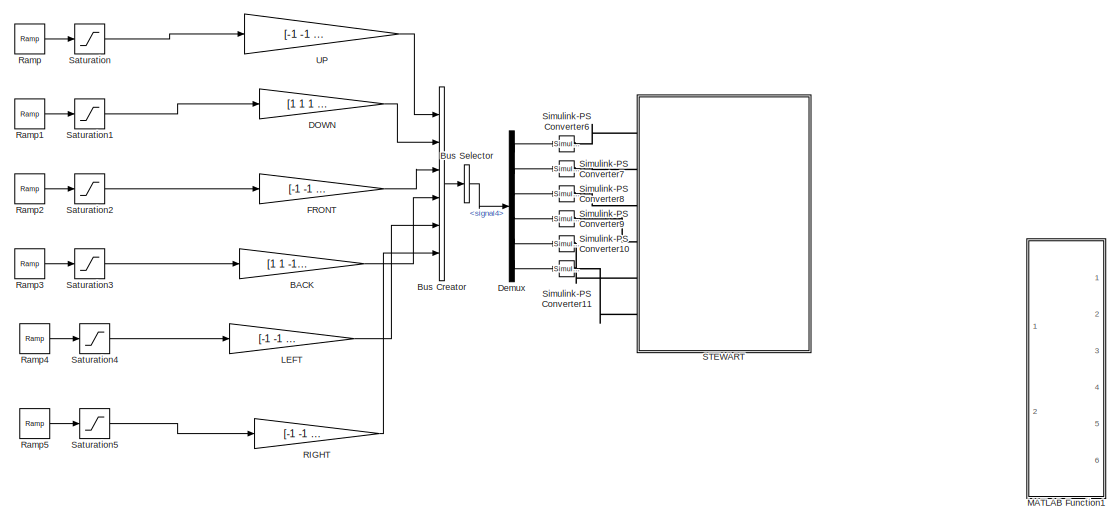
[diagram: root canvas - part 1/2, full width, top band]
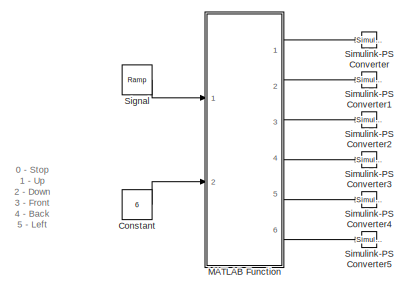
[diagram: root canvas - part 2/2, bottom left region]
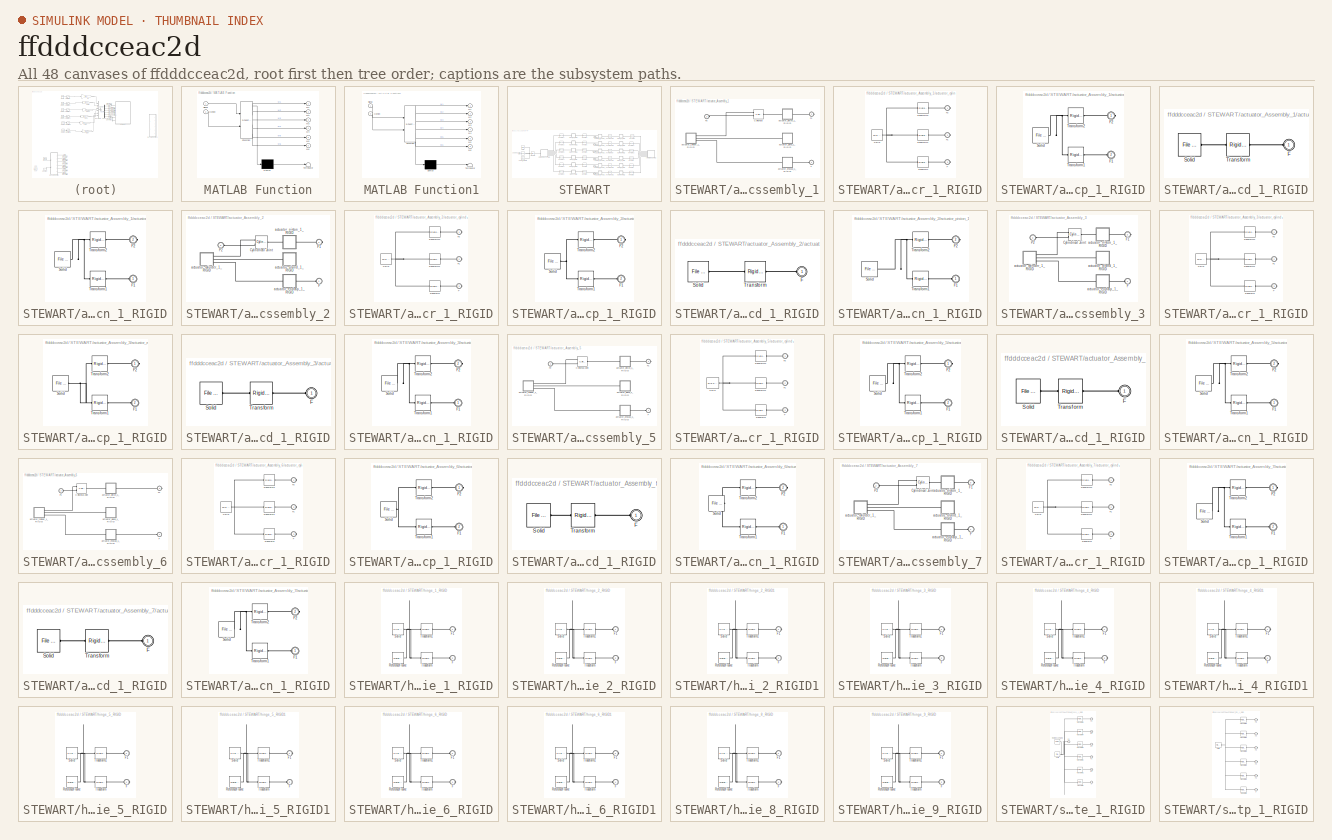
[diagram: thumbnail index - all 48 canvases of the model, root first then tree order]
MODEL slx_ffdddcceac2d
KIND model
CONFIG AbsTol = auto
CONFIG EnableMultiTasking = off
CONFIG FixedStep = auto
CONFIG MaxStep = auto
CONFIG MinStep = auto
CONFIG RelTol = 1e-3
CONFIG SampleTimeConstraint = Unconstrained
CONFIG Solver = VariableStepAuto
CONFIG SolverName = VariableStepAuto
CONFIG StartTime = 0.0
CONFIG StopTime = 10.0
WORKSPACE source: external: MATLAB File  (data not in archive)
BLOCK [Gain] BACK
  Gain = [1 1 -1 -1 -1 -1]
BLOCK [BusCreator] Bus Creator
  DisplayOption = bar
  InheritFromInputs = on
  Inputs = 6
  Ports = [6, 1]
BLOCK [BusSelector] Bus Selector
  OutputSignals = signal4
  Ports = [1, 1]
BLOCK [Constant] Constant
  Commented = on
  OutMax = 6
  OutMin = 0
  Value = 6
BLOCK [Gain] DOWN
  Gain = [1 1 1 1 1 1]
BLOCK [Demux] Demux
  Outputs = 6
  Ports = [1, 6]
BLOCK [Gain] FRONT
  Gain = [-1 -1 -1 1 -1 1]
BLOCK [Gain] LEFT
  Gain = [-1 -1 -1 -1 1 1]
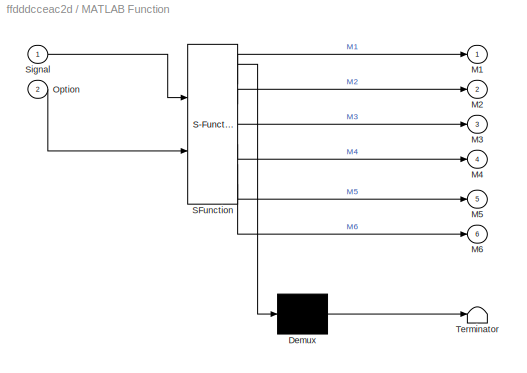
BLOCK [SubSystem] MATLAB Function
  Commented = on
  ErrorFcn = Stateflow.Translate.translate
  PermitHierarchicalResolution = ExplicitOnly
  Ports = [2, 6]
  RequestExecContextInheritance = off
  SFBlockType = MATLAB Function
  TreatAsAtomicUnit = on
BLOCK [Demux] MATLAB Function/ Demux 
  Outputs = 1
  Ports = [1, 1]
BLOCK [S-Function] MATLAB Function/ SFunction 
  EnableBusSupport = on
  FunctionName = sf_sfun
  PortCounts = [2 7]
  Ports = [2, 7]
  SFcnIsStateOwnerBlock = off
  SFunctionDeploymentMode = off
  Tag = Stateflow S-Function 2
BLOCK [Terminator] MATLAB Function/ Terminator 
BLOCK [Outport] MATLAB Function/M1
BLOCK [Outport] MATLAB Function/M2
  Port = 2
BLOCK [Outport] MATLAB Function/M3
  Port = 3
BLOCK [Outport] MATLAB Function/M4
  Port = 4
BLOCK [Outport] MATLAB Function/M5
  Port = 5
BLOCK [Outport] MATLAB Function/M6
  Port = 6
BLOCK [Inport] MATLAB Function/Option
  Port = 2
BLOCK [Inport] MATLAB Function/Signal
BLOCK [SubSystem] MATLAB Function1
  ErrorFcn = Stateflow.Translate.translate
  PermitHierarchicalResolution = ExplicitOnly
  Ports = [2, 6]
  RequestExecContextInheritance = off
  SFBlockType = MATLAB Function
  TreatAsAtomicUnit = on
BLOCK [Demux] MATLAB Function1/ Demux 
  Outputs = 1
  Ports = [1, 1]
BLOCK [S-Function] MATLAB Function1/ SFunction 
  EnableBusSupport = on
  FunctionName = sf_sfun
  PortCounts = [2 7]
  Ports = [2, 7]
  SFcnIsStateOwnerBlock = off
  SFunctionDeploymentMode = off
  Tag = Stateflow S-Function 1
BLOCK [Terminator] MATLAB Function1/ Terminator 
BLOCK [Outport] MATLAB Function1/M1
BLOCK [Outport] MATLAB Function1/M2
  Port = 2
BLOCK [Outport] MATLAB Function1/M3
  Port = 3
BLOCK [Outport] MATLAB Function1/M4
  Port = 4
BLOCK [Outport] MATLAB Function1/M5
  Port = 5
BLOCK [Outport] MATLAB Function1/M6
  Port = 6
BLOCK [Inport] MATLAB Function1/Option
  Port = 2
BLOCK [Inport] MATLAB Function1/Signal
BLOCK [Gain] RIGHT
  Gain = [-1 -1 1 1 -1 -1]
BLOCK [Reference] Ramp  REF=simulink/Sources/Ramp
  Ports = [0, 1]
  SourceBlock = simulink/Sources/Ramp
  SourceProductBaseCode = SL
  SourceType = Ramp
BLOCK [Reference] Ramp1  REF=simulink/Sources/Ramp
  Ports = [0, 1]
  SourceBlock = simulink/Sources/Ramp
  SourceProductBaseCode = SL
  SourceType = Ramp
BLOCK [Reference] Ramp2  REF=simulink/Sources/Ramp
  Ports = [0, 1]
  SourceBlock = simulink/Sources/Ramp
  SourceProductBaseCode = SL
  SourceType = Ramp
BLOCK [Reference] Ramp3  REF=simulink/Sources/Ramp
  Ports = [0, 1]
  SourceBlock = simulink/Sources/Ramp
  SourceProductBaseCode = SL
  SourceType = Ramp
BLOCK [Reference] Ramp4  REF=simulink/Sources/Ramp
  Ports = [0, 1]
  SourceBlock = simulink/Sources/Ramp
  SourceProductBaseCode = SL
  SourceType = Ramp
BLOCK [Reference] Ramp5  REF=simulink/Sources/Ramp
  Ports = [0, 1]
  SourceBlock = simulink/Sources/Ramp
  SourceProductBaseCode = SL
  SourceType = Ramp
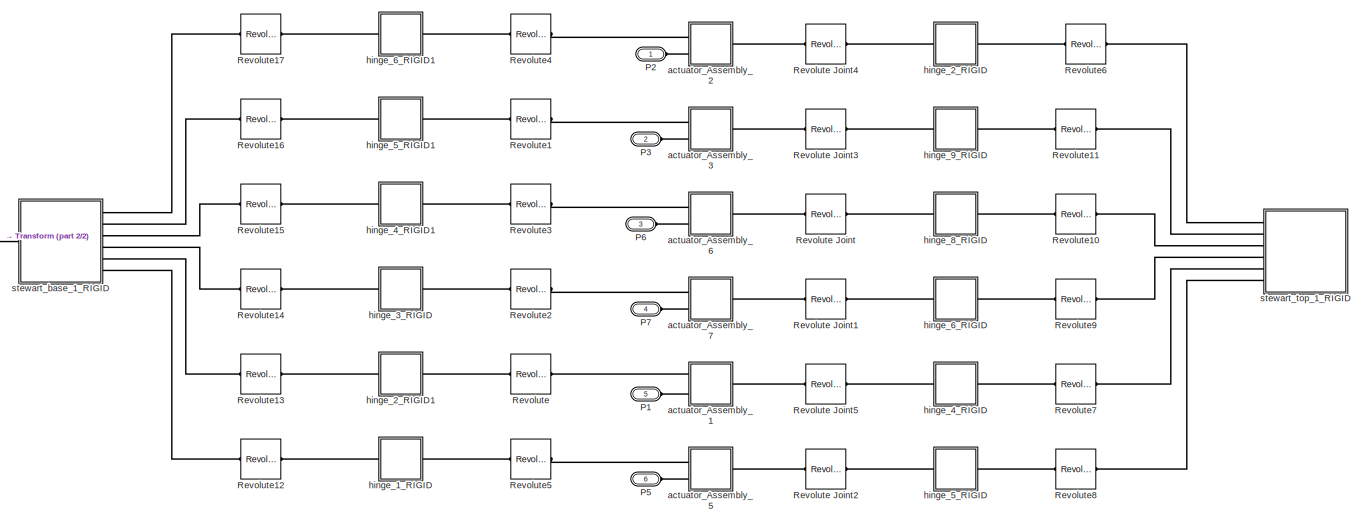
[diagram: STEWART - part 1/2, most of the canvas]
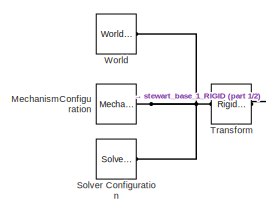
[diagram: STEWART - part 2/2, middle left region]
BLOCK [SubSystem] STEWART
  Ports = [0, 0, 0, 0, 0, 6]
  RequestExecContextInheritance = off
BLOCK [Reference] STEWART/MechanismConfiguration  REF=sm_lib/Utilities/Mechanism
Configuration
  Ports = [0, 0, 0, 0, 0, 0, 1]
  SourceBlock = sm_lib/Utilities/Mechanism\nConfiguration
  SourceProductBaseCode = MS
  SourceType = Mechanism\nConfiguration
BLOCK [PMIOPort] STEWART/P1
  Port = 5
  Side = Left
BLOCK [PMIOPort] STEWART/P2
  Side = Left
BLOCK [PMIOPort] STEWART/P3
  Port = 2
  Side = Left
BLOCK [PMIOPort] STEWART/P5
  Port = 6
  Side = Left
BLOCK [PMIOPort] STEWART/P6
  Port = 3
  Side = Left
BLOCK [PMIOPort] STEWART/P7
  Port = 4
  Side = Left
BLOCK [Reference] STEWART/Revolute  REF=sm_lib/Joints/Revolute Joint
  Ports = [0, 0, 0, 0, 0, 1, 1]
  SourceBlock = sm_lib/Joints/Revolute Joint
  SourceProductBaseCode = MS
  SourceType = Revolute Joint
BLOCK [Reference] STEWART/Revolute Joint  REF=sm_lib/Joints/Revolute Joint
  Ports = [0, 0, 0, 0, 0, 1, 1]
  SourceBlock = sm_lib/Joints/Revolute Joint
  SourceProductBaseCode = MS
  SourceType = Revolute Joint
BLOCK [Reference] STEWART/Revolute Joint1  REF=sm_lib/Joints/Revolute Joint
  Ports = [0, 0, 0, 0, 0, 1, 1]
  SourceBlock = sm_lib/Joints/Revolute Joint
  SourceProductBaseCode = MS
  SourceType = Revolute Joint
BLOCK [Reference] STEWART/Revolute Joint2  REF=sm_lib/Joints/Revolute Joint
  Ports = [0, 0, 0, 0, 0, 1, 1]
  SourceBlock = sm_lib/Joints/Revolute Joint
  SourceProductBaseCode = MS
  SourceType = Revolute Joint
BLOCK [Reference] STEWART/Revolute Joint3  REF=sm_lib/Joints/Revolute Joint
  Ports = [0, 0, 0, 0, 0, 1, 1]
  SourceBlock = sm_lib/Joints/Revolute Joint
  SourceProductBaseCode = MS
  SourceType = Revolute Joint
BLOCK [Reference] STEWART/Revolute Joint4  REF=sm_lib/Joints/Revolute Joint
  Ports = [0, 0, 0, 0, 0, 1, 1]
  SourceBlock = sm_lib/Joints/Revolute Joint
  SourceProductBaseCode = MS
  SourceType = Revolute Joint
BLOCK [Reference] STEWART/Revolute Joint5  REF=sm_lib/Joints/Revolute Joint
  Ports = [0, 0, 0, 0, 0, 1, 1]
  SourceBlock = sm_lib/Joints/Revolute Joint
  SourceProductBaseCode = MS
  SourceType = Revolute Joint
BLOCK [Reference] STEWART/Revolute1  REF=sm_lib/Joints/Revolute Joint
  Ports = [0, 0, 0, 0, 0, 1, 1]
  SourceBlock = sm_lib/Joints/Revolute Joint
  SourceProductBaseCode = MS
  SourceType = Revolute Joint
BLOCK [Reference] STEWART/Revolute10  REF=sm_lib/Joints/Revolute Joint
  Ports = [0, 0, 0, 0, 0, 1, 1]
  SourceBlock = sm_lib/Joints/Revolute Joint
  SourceProductBaseCode = MS
  SourceType = Revolute Joint
BLOCK [Reference] STEWART/Revolute11  REF=sm_lib/Joints/Revolute Joint
  Ports = [0, 0, 0, 0, 0, 1, 1]
  SourceBlock = sm_lib/Joints/Revolute Joint
  SourceProductBaseCode = MS
  SourceType = Revolute Joint
BLOCK [Reference] STEWART/Revolute12  REF=sm_lib/Joints/Revolute Joint
  Ports = [0, 0, 0, 0, 0, 1, 1]
  SourceBlock = sm_lib/Joints/Revolute Joint
  SourceProductBaseCode = MS
  SourceType = Revolute Joint
BLOCK [Reference] STEWART/Revolute13  REF=sm_lib/Joints/Revolute Joint
  Ports = [0, 0, 0, 0, 0, 1, 1]
  SourceBlock = sm_lib/Joints/Revolute Joint
  SourceProductBaseCode = MS
  SourceType = Revolute Joint
BLOCK [Reference] STEWART/Revolute14  REF=sm_lib/Joints/Revolute Joint
  Ports = [0, 0, 0, 0, 0, 1, 1]
  SourceBlock = sm_lib/Joints/Revolute Joint
  SourceProductBaseCode = MS
  SourceType = Revolute Joint
BLOCK [Reference] STEWART/Revolute15  REF=sm_lib/Joints/Revolute Joint
  Ports = [0, 0, 0, 0, 0, 1, 1]
  SourceBlock = sm_lib/Joints/Revolute Joint
  SourceProductBaseCode = MS
  SourceType = Revolute Joint
BLOCK [Reference] STEWART/Revolute16  REF=sm_lib/Joints/Revolute Joint
  Ports = [0, 0, 0, 0, 0, 1, 1]
  SourceBlock = sm_lib/Joints/Revolute Joint
  SourceProductBaseCode = MS
  SourceType = Revolute Joint
BLOCK [Reference] STEWART/Revolute17  REF=sm_lib/Joints/Revolute Joint
  Ports = [0, 0, 0, 0, 0, 1, 1]
  SourceBlock = sm_lib/Joints/Revolute Joint
  SourceProductBaseCode = MS
  SourceType = Revolute Joint
BLOCK [Reference] STEWART/Revolute2  REF=sm_lib/Joints/Revolute Joint
  Ports = [0, 0, 0, 0, 0, 1, 1]
  SourceBlock = sm_lib/Joints/Revolute Joint
  SourceProductBaseCode = MS
  SourceType = Revolute Joint
BLOCK [Reference] STEWART/Revolute3  REF=sm_lib/Joints/Revolute Joint
  Ports = [0, 0, 0, 0, 0, 1, 1]
  SourceBlock = sm_lib/Joints/Revolute Joint
  SourceProductBaseCode = MS
  SourceType = Revolute Joint
BLOCK [Reference] STEWART/Revolute4  REF=sm_lib/Joints/Revolute Joint
  Ports = [0, 0, 0, 0, 0, 1, 1]
  SourceBlock = sm_lib/Joints/Revolute Joint
  SourceProductBaseCode = MS
  SourceType = Revolute Joint
BLOCK [Reference] STEWART/Revolute5  REF=sm_lib/Joints/Revolute Joint
  Ports = [0, 0, 0, 0, 0, 1, 1]
  SourceBlock = sm_lib/Joints/Revolute Joint
  SourceProductBaseCode = MS
  SourceType = Revolute Joint
BLOCK [Reference] STEWART/Revolute6  REF=sm_lib/Joints/Revolute Joint
  Ports = [0, 0, 0, 0, 0, 1, 1]
  SourceBlock = sm_lib/Joints/Revolute Joint
  SourceProductBaseCode = MS
  SourceType = Revolute Joint
BLOCK [Reference] STEWART/Revolute7  REF=sm_lib/Joints/Revolute Joint
  Ports = [0, 0, 0, 0, 0, 1, 1]
  SourceBlock = sm_lib/Joints/Revolute Joint
  SourceProductBaseCode = MS
  SourceType = Revolute Joint
BLOCK [Reference] STEWART/Revolute8  REF=sm_lib/Joints/Revolute Joint
  Ports = [0, 0, 0, 0, 0, 1, 1]
  SourceBlock = sm_lib/Joints/Revolute Joint
  SourceProductBaseCode = MS
  SourceType = Revolute Joint
BLOCK [Reference] STEWART/Revolute9  REF=sm_lib/Joints/Revolute Joint
  Ports = [0, 0, 0, 0, 0, 1, 1]
  SourceBlock = sm_lib/Joints/Revolute Joint
  SourceProductBaseCode = MS
  SourceType = Revolute Joint
BLOCK [Reference] STEWART/Solver Configuration  REF=nesl_utility/Solver
Configuration
  Ports = [0, 0, 0, 0, 0, 0, 1]
  SourceBlock = nesl_utility/Solver\nConfiguration
  SourceProductBaseCode = SS
  SourceType = Solver\nConfiguration
BLOCK [Reference] STEWART/Transform  REF=sm_lib/Frames and
Transforms/Rigid
Transform
  Ports = [0, 0, 0, 0, 0, 1, 1]
  SourceBlock = sm_lib/Frames and\nTransforms/Rigid\nTransform
  SourceProductBaseCode = MS
  SourceType = Rigid\nTransform
BLOCK [Reference] STEWART/World  REF=sm_lib/Frames and
Transforms/World Frame
  Ports = [0, 0, 0, 0, 0, 0, 1]
  SourceBlock = sm_lib/Frames and\nTransforms/World Frame
  SourceProductBaseCode = MS
  SourceType = World Frame
BLOCK [SubSystem] STEWART/actuator_Assembly_1
  Ports = [0, 0, 0, 0, 0, 2, 1]
  RequestExecContextInheritance = off
BLOCK [Reference] STEWART/actuator_Assembly_1/Cylindrical  REF=sm_lib/Joints/Cylindrical
Joint
  Ports = [0, 0, 0, 0, 0, 2, 1]
  SourceBlock = sm_lib/Joints/Cylindrical\nJoint
  SourceProductBaseCode = MS
  SourceType = Cylindrical\nJoint
BLOCK [PMIOPort] STEWART/actuator_Assembly_1/F
  Side = Left
BLOCK [PMIOPort] STEWART/actuator_Assembly_1/F1
  Port = 2
  Side = Right
BLOCK [PMIOPort] STEWART/actuator_Assembly_1/P2
  Port = 3
  Side = Left
BLOCK [SubSystem] STEWART/actuator_Assembly_1/actuator_cylinder_1_RIGID
  Ports = [0, 0, 0, 0, 0, 0, 3]
  RequestExecContextInheritance = off
BLOCK [PMIOPort] STEWART/actuator_Assembly_1/actuator_cylinder_1_RIGID/F
  Port = 3
  Side = Right
BLOCK [PMIOPort] STEWART/actuator_Assembly_1/actuator_cylinder_1_RIGID/F1
  Port = 2
  Side = Right
BLOCK [PMIOPort] STEWART/actuator_Assembly_1/actuator_cylinder_1_RIGID/F2
  Side = Right
BLOCK [Reference] STEWART/actuator_Assembly_1/actuator_cylinder_1_RIGID/Solid  REF=sm_lib/Body Elements/File Solid
  Ports = [0, 0, 0, 0, 0, 0, 1]
  SourceBlock = sm_lib/Body Elements/File Solid
  SourceProductBaseCode = MS
  SourceType = File Solid
BLOCK [Reference] STEWART/actuator_Assembly_1/actuator_cylinder_1_RIGID/Transform  REF=sm_lib/Frames and
Transforms/Rigid
Transform
  Ports = [0, 0, 0, 0, 0, 1, 1]
  SourceBlock = sm_lib/Frames and\nTransforms/Rigid\nTransform
  SourceProductBaseCode = MS
  SourceType = Rigid\nTransform
BLOCK [Reference] STEWART/actuator_Assembly_1/actuator_cylinder_1_RIGID/Transform1  REF=sm_lib/Frames and
Transforms/Rigid
Transform
  Ports = [0, 0, 0, 0, 0, 1, 1]
  SourceBlock = sm_lib/Frames and\nTransforms/Rigid\nTransform
  SourceProductBaseCode = MS
  SourceType = Rigid\nTransform
BLOCK [Reference] STEWART/actuator_Assembly_1/actuator_cylinder_1_RIGID/Transform2  REF=sm_lib/Frames and
Transforms/Rigid
Transform
  Ports = [0, 0, 0, 0, 0, 1, 1]
  SourceBlock = sm_lib/Frames and\nTransforms/Rigid\nTransform
  SourceProductBaseCode = MS
  SourceType = Rigid\nTransform
BLOCK [SubSystem] STEWART/actuator_Assembly_1/actuator_endcap_1_RIGID
  Ports = [0, 0, 0, 0, 0, 1, 1]
  RequestExecContextInheritance = off
BLOCK [PMIOPort] STEWART/actuator_Assembly_1/actuator_endcap_1_RIGID/F1
  Port = 2
  Side = Left
BLOCK [PMIOPort] STEWART/actuator_Assembly_1/actuator_endcap_1_RIGID/F2
  Side = Right
BLOCK [Reference] STEWART/actuator_Assembly_1/actuator_endcap_1_RIGID/Solid  REF=sm_lib/Body Elements/File Solid
  Ports = [0, 0, 0, 0, 0, 0, 1]
  SourceBlock = sm_lib/Body Elements/File Solid
  SourceProductBaseCode = MS
  SourceType = File Solid
BLOCK [Reference] STEWART/actuator_Assembly_1/actuator_endcap_1_RIGID/Transform1  REF=sm_lib/Frames and
Transforms/Rigid
Transform
  Ports = [0, 0, 0, 0, 0, 1, 1]
  SourceBlock = sm_lib/Frames and\nTransforms/Rigid\nTransform
  SourceProductBaseCode = MS
  SourceType = Rigid\nTransform
BLOCK [Reference] STEWART/actuator_Assembly_1/actuator_endcap_1_RIGID/Transform2  REF=sm_lib/Frames and
Transforms/Rigid
Transform
  Ports = [0, 0, 0, 0, 0, 1, 1]
  SourceBlock = sm_lib/Frames and\nTransforms/Rigid\nTransform
  SourceProductBaseCode = MS
  SourceType = Rigid\nTransform
BLOCK [SubSystem] STEWART/actuator_Assembly_1/actuator_gland_1_RIGID
  Ports = [0, 0, 0, 0, 0, 1]
  RequestExecContextInheritance = off
BLOCK [PMIOPort] STEWART/actuator_Assembly_1/actuator_gland_1_RIGID/F
  Side = Left
BLOCK [Reference] STEWART/actuator_Assembly_1/actuator_gland_1_RIGID/Solid  REF=sm_lib/Body Elements/File Solid
  Ports = [0, 0, 0, 0, 0, 0, 1]
  SourceBlock = sm_lib/Body Elements/File Solid
  SourceProductBaseCode = MS
  SourceType = File Solid
BLOCK [Reference] STEWART/actuator_Assembly_1/actuator_gland_1_RIGID/Transform  REF=sm_lib/Frames and
Transforms/Rigid
Transform
  Ports = [0, 0, 0, 0, 0, 1, 1]
  SourceBlock = sm_lib/Frames and\nTransforms/Rigid\nTransform
  SourceProductBaseCode = MS
  SourceType = Rigid\nTransform
BLOCK [SubSystem] STEWART/actuator_Assembly_1/actuator_piston_1_RIGID
  Ports = [0, 0, 0, 0, 0, 1, 1]
  RequestExecContextInheritance = off
BLOCK [PMIOPort] STEWART/actuator_Assembly_1/actuator_piston_1_RIGID/F1
  Side = Left
BLOCK [PMIOPort] STEWART/actuator_Assembly_1/actuator_piston_1_RIGID/F2
  Port = 2
  Side = Right
BLOCK [Reference] STEWART/actuator_Assembly_1/actuator_piston_1_RIGID/Solid  REF=sm_lib/Body Elements/File Solid
  Ports = [0, 0, 0, 0, 0, 0, 1]
  SourceBlock = sm_lib/Body Elements/File Solid
  SourceProductBaseCode = MS
  SourceType = File Solid
BLOCK [Reference] STEWART/actuator_Assembly_1/actuator_piston_1_RIGID/Transform1  REF=sm_lib/Frames and
Transforms/Rigid
Transform
  Ports = [0, 0, 0, 0, 0, 1, 1]
  SourceBlock = sm_lib/Frames and\nTransforms/Rigid\nTransform
  SourceProductBaseCode = MS
  SourceType = Rigid\nTransform
BLOCK [Reference] STEWART/actuator_Assembly_1/actuator_piston_1_RIGID/Transform2  REF=sm_lib/Frames and
Transforms/Rigid
Transform
  Ports = [0, 0, 0, 0, 0, 1, 1]
  SourceBlock = sm_lib/Frames and\nTransforms/Rigid\nTransform
  SourceProductBaseCode = MS
  SourceType = Rigid\nTransform
BLOCK [SubSystem] STEWART/actuator_Assembly_2
  Ports = [0, 0, 0, 0, 0, 2, 1]
  RequestExecContextInheritance = off
BLOCK [Reference] STEWART/actuator_Assembly_2/Cylindrical Joint  REF=sm_lib/Joints/Cylindrical
Joint
  Ports = [0, 0, 0, 0, 0, 2, 1]
  SourceBlock = sm_lib/Joints/Cylindrical\nJoint
  SourceProductBaseCode = MS
  SourceType = Cylindrical\nJoint
BLOCK [PMIOPort] STEWART/actuator_Assembly_2/F
  Side = Left
BLOCK [PMIOPort] STEWART/actuator_Assembly_2/F1
  Port = 2
  Side = Right
BLOCK [PMIOPort] STEWART/actuator_Assembly_2/P2
  Port = 3
  Side = Left
BLOCK [SubSystem] STEWART/actuator_Assembly_2/actuator_cylinder_1_RIGID
  Ports = [0, 0, 0, 0, 0, 0, 3]
  RequestExecContextInheritance = off
BLOCK [PMIOPort] STEWART/actuator_Assembly_2/actuator_cylinder_1_RIGID/F
  Port = 3
  Side = Right
BLOCK [PMIOPort] STEWART/actuator_Assembly_2/actuator_cylinder_1_RIGID/F1
  Port = 2
  Side = Right
BLOCK [PMIOPort] STEWART/actuator_Assembly_2/actuator_cylinder_1_RIGID/F2
  Side = Right
BLOCK [Reference] STEWART/actuator_Assembly_2/actuator_cylinder_1_RIGID/Solid  REF=sm_lib/Body Elements/File Solid
  Ports = [0, 0, 0, 0, 0, 0, 1]
  SourceBlock = sm_lib/Body Elements/File Solid
  SourceProductBaseCode = MS
  SourceType = File Solid
BLOCK [Reference] STEWART/actuator_Assembly_2/actuator_cylinder_1_RIGID/Transform  REF=sm_lib/Frames and
Transforms/Rigid
Transform
  Ports = [0, 0, 0, 0, 0, 1, 1]
  SourceBlock = sm_lib/Frames and\nTransforms/Rigid\nTransform
  SourceProductBaseCode = MS
  SourceType = Rigid\nTransform
BLOCK [Reference] STEWART/actuator_Assembly_2/actuator_cylinder_1_RIGID/Transform1  REF=sm_lib/Frames and
Transforms/Rigid
Transform
  Ports = [0, 0, 0, 0, 0, 1, 1]
  SourceBlock = sm_lib/Frames and\nTransforms/Rigid\nTransform
  SourceProductBaseCode = MS
  SourceType = Rigid\nTransform
BLOCK [Reference] STEWART/actuator_Assembly_2/actuator_cylinder_1_RIGID/Transform2  REF=sm_lib/Frames and
Transforms/Rigid
Transform
  Ports = [0, 0, 0, 0, 0, 1, 1]
  SourceBlock = sm_lib/Frames and\nTransforms/Rigid\nTransform
  SourceProductBaseCode = MS
  SourceType = Rigid\nTransform
BLOCK [SubSystem] STEWART/actuator_Assembly_2/actuator_endcap_1_RIGID
  Ports = [0, 0, 0, 0, 0, 1, 1]
  RequestExecContextInheritance = off
BLOCK [PMIOPort] STEWART/actuator_Assembly_2/actuator_endcap_1_RIGID/F1
  Port = 2
  Side = Left
BLOCK [PMIOPort] STEWART/actuator_Assembly_2/actuator_endcap_1_RIGID/F2
  Side = Right
BLOCK [Reference] STEWART/actuator_Assembly_2/actuator_endcap_1_RIGID/Solid  REF=sm_lib/Body Elements/File Solid
  Ports = [0, 0, 0, 0, 0, 0, 1]
  SourceBlock = sm_lib/Body Elements/File Solid
  SourceProductBaseCode = MS
  SourceType = File Solid
BLOCK [Reference] STEWART/actuator_Assembly_2/actuator_endcap_1_RIGID/Transform1  REF=sm_lib/Frames and
Transforms/Rigid
Transform
  Ports = [0, 0, 0, 0, 0, 1, 1]
  SourceBlock = sm_lib/Frames and\nTransforms/Rigid\nTransform
  SourceProductBaseCode = MS
  SourceType = Rigid\nTransform
BLOCK [Reference] STEWART/actuator_Assembly_2/actuator_endcap_1_RIGID/Transform2  REF=sm_lib/Frames and
Transforms/Rigid
Transform
  Ports = [0, 0, 0, 0, 0, 1, 1]
  SourceBlock = sm_lib/Frames and\nTransforms/Rigid\nTransform
  SourceProductBaseCode = MS
  SourceType = Rigid\nTransform
BLOCK [SubSystem] STEWART/actuator_Assembly_2/actuator_gland_1_RIGID
  Ports = [0, 0, 0, 0, 0, 1]
  RequestExecContextInheritance = off
BLOCK [PMIOPort] STEWART/actuator_Assembly_2/actuator_gland_1_RIGID/F
  Side = Left
BLOCK [Reference] STEWART/actuator_Assembly_2/actuator_gland_1_RIGID/Solid  REF=sm_lib/Body Elements/File Solid
  Ports = [0, 0, 0, 0, 0, 0, 1]
  SourceBlock = sm_lib/Body Elements/File Solid
  SourceProductBaseCode = MS
  SourceType = File Solid
BLOCK [Reference] STEWART/actuator_Assembly_2/actuator_gland_1_RIGID/Transform  REF=sm_lib/Frames and
Transforms/Rigid
Transform
  Ports = [0, 0, 0, 0, 0, 1, 1]
  SourceBlock = sm_lib/Frames and\nTransforms/Rigid\nTransform
  SourceProductBaseCode = MS
  SourceType = Rigid\nTransform
BLOCK [SubSystem] STEWART/actuator_Assembly_2/actuator_piston_1_RIGID
  Ports = [0, 0, 0, 0, 0, 1, 1]
  RequestExecContextInheritance = off
BLOCK [PMIOPort] STEWART/actuator_Assembly_2/actuator_piston_1_RIGID/F1
  Side = Left
BLOCK [PMIOPort] STEWART/actuator_Assembly_2/actuator_piston_1_RIGID/F2
  Port = 2
  Side = Right
BLOCK [Reference] STEWART/actuator_Assembly_2/actuator_piston_1_RIGID/Solid  REF=sm_lib/Body Elements/File Solid
  Ports = [0, 0, 0, 0, 0, 0, 1]
  SourceBlock = sm_lib/Body Elements/File Solid
  SourceProductBaseCode = MS
  SourceType = File Solid
BLOCK [Reference] STEWART/actuator_Assembly_2/actuator_piston_1_RIGID/Transform1  REF=sm_lib/Frames and
Transforms/Rigid
Transform
  Ports = [0, 0, 0, 0, 0, 1, 1]
  SourceBlock = sm_lib/Frames and\nTransforms/Rigid\nTransform
  SourceProductBaseCode = MS
  SourceType = Rigid\nTransform
BLOCK [Reference] STEWART/actuator_Assembly_2/actuator_piston_1_RIGID/Transform2  REF=sm_lib/Frames and
Transforms/Rigid
Transform
  Ports = [0, 0, 0, 0, 0, 1, 1]
  SourceBlock = sm_lib/Frames and\nTransforms/Rigid\nTransform
  SourceProductBaseCode = MS
  SourceType = Rigid\nTransform
BLOCK [SubSystem] STEWART/actuator_Assembly_3
  Ports = [0, 0, 0, 0, 0, 2, 1]
  RequestExecContextInheritance = off
BLOCK [Reference] STEWART/actuator_Assembly_3/Cylindrical Joint  REF=sm_lib/Joints/Cylindrical
Joint
  Ports = [0, 0, 0, 0, 0, 2, 1]
  SourceBlock = sm_lib/Joints/Cylindrical\nJoint
  SourceProductBaseCode = MS
  SourceType = Cylindrical\nJoint
BLOCK [PMIOPort] STEWART/actuator_Assembly_3/F
  Side = Left
BLOCK [PMIOPort] STEWART/actuator_Assembly_3/F1
  Port = 2
  Side = Right
BLOCK [PMIOPort] STEWART/actuator_Assembly_3/P2
  Port = 3
  Side = Left
BLOCK [SubSystem] STEWART/actuator_Assembly_3/actuator_cylinder_1_RIGID
  Ports = [0, 0, 0, 0, 0, 0, 3]
  RequestExecContextInheritance = off
BLOCK [PMIOPort] STEWART/actuator_Assembly_3/actuator_cylinder_1_RIGID/F
  Port = 3
  Side = Right
BLOCK [PMIOPort] STEWART/actuator_Assembly_3/actuator_cylinder_1_RIGID/F1
  Port = 2
  Side = Right
BLOCK [PMIOPort] STEWART/actuator_Assembly_3/actuator_cylinder_1_RIGID/F2
  Side = Right
BLOCK [Reference] STEWART/actuator_Assembly_3/actuator_cylinder_1_RIGID/Solid  REF=sm_lib/Body Elements/File Solid
  Ports = [0, 0, 0, 0, 0, 0, 1]
  SourceBlock = sm_lib/Body Elements/File Solid
  SourceProductBaseCode = MS
  SourceType = File Solid
BLOCK [Reference] STEWART/actuator_Assembly_3/actuator_cylinder_1_RIGID/Transform  REF=sm_lib/Frames and
Transforms/Rigid
Transform
  Ports = [0, 0, 0, 0, 0, 1, 1]
  SourceBlock = sm_lib/Frames and\nTransforms/Rigid\nTransform
  SourceProductBaseCode = MS
  SourceType = Rigid\nTransform
BLOCK [Reference] STEWART/actuator_Assembly_3/actuator_cylinder_1_RIGID/Transform1  REF=sm_lib/Frames and
Transforms/Rigid
Transform
  Ports = [0, 0, 0, 0, 0, 1, 1]
  SourceBlock = sm_lib/Frames and\nTransforms/Rigid\nTransform
  SourceProductBaseCode = MS
  SourceType = Rigid\nTransform
BLOCK [Reference] STEWART/actuator_Assembly_3/actuator_cylinder_1_RIGID/Transform2  REF=sm_lib/Frames and
Transforms/Rigid
Transform
  Ports = [0, 0, 0, 0, 0, 1, 1]
  SourceBlock = sm_lib/Frames and\nTransforms/Rigid\nTransform
  SourceProductBaseCode = MS
  SourceType = Rigid\nTransform
BLOCK [SubSystem] STEWART/actuator_Assembly_3/actuator_endcap_1_RIGID
  Ports = [0, 0, 0, 0, 0, 1, 1]
  RequestExecContextInheritance = off
BLOCK [PMIOPort] STEWART/actuator_Assembly_3/actuator_endcap_1_RIGID/F1
  Port = 2
  Side = Left
BLOCK [PMIOPort] STEWART/actuator_Assembly_3/actuator_endcap_1_RIGID/F2
  Side = Right
BLOCK [Reference] STEWART/actuator_Assembly_3/actuator_endcap_1_RIGID/Solid  REF=sm_lib/Body Elements/File Solid
  Ports = [0, 0, 0, 0, 0, 0, 1]
  SourceBlock = sm_lib/Body Elements/File Solid
  SourceProductBaseCode = MS
  SourceType = File Solid
BLOCK [Reference] STEWART/actuator_Assembly_3/actuator_endcap_1_RIGID/Transform1  REF=sm_lib/Frames and
Transforms/Rigid
Transform
  Ports = [0, 0, 0, 0, 0, 1, 1]
  SourceBlock = sm_lib/Frames and\nTransforms/Rigid\nTransform
  SourceProductBaseCode = MS
  SourceType = Rigid\nTransform
BLOCK [Reference] STEWART/actuator_Assembly_3/actuator_endcap_1_RIGID/Transform2  REF=sm_lib/Frames and
Transforms/Rigid
Transform
  Ports = [0, 0, 0, 0, 0, 1, 1]
  SourceBlock = sm_lib/Frames and\nTransforms/Rigid\nTransform
  SourceProductBaseCode = MS
  SourceType = Rigid\nTransform
BLOCK [SubSystem] STEWART/actuator_Assembly_3/actuator_gland_1_RIGID
  Ports = [0, 0, 0, 0, 0, 1]
  RequestExecContextInheritance = off
BLOCK [PMIOPort] STEWART/actuator_Assembly_3/actuator_gland_1_RIGID/F
  Side = Left
BLOCK [Reference] STEWART/actuator_Assembly_3/actuator_gland_1_RIGID/Solid  REF=sm_lib/Body Elements/File Solid
  Ports = [0, 0, 0, 0, 0, 0, 1]
  SourceBlock = sm_lib/Body Elements/File Solid
  SourceProductBaseCode = MS
  SourceType = File Solid
BLOCK [Reference] STEWART/actuator_Assembly_3/actuator_gland_1_RIGID/Transform  REF=sm_lib/Frames and
Transforms/Rigid
Transform
  Ports = [0, 0, 0, 0, 0, 1, 1]
  SourceBlock = sm_lib/Frames and\nTransforms/Rigid\nTransform
  SourceProductBaseCode = MS
  SourceType = Rigid\nTransform
BLOCK [SubSystem] STEWART/actuator_Assembly_3/actuator_piston_1_RIGID
  Ports = [0, 0, 0, 0, 0, 1, 1]
  RequestExecContextInheritance = off
BLOCK [PMIOPort] STEWART/actuator_Assembly_3/actuator_piston_1_RIGID/F1
  Side = Left
BLOCK [PMIOPort] STEWART/actuator_Assembly_3/actuator_piston_1_RIGID/F2
  Port = 2
  Side = Right
BLOCK [Reference] STEWART/actuator_Assembly_3/actuator_piston_1_RIGID/Solid  REF=sm_lib/Body Elements/File Solid
  Ports = [0, 0, 0, 0, 0, 0, 1]
  SourceBlock = sm_lib/Body Elements/File Solid
  SourceProductBaseCode = MS
  SourceType = File Solid
BLOCK [Reference] STEWART/actuator_Assembly_3/actuator_piston_1_RIGID/Transform1  REF=sm_lib/Frames and
Transforms/Rigid
Transform
  Ports = [0, 0, 0, 0, 0, 1, 1]
  SourceBlock = sm_lib/Frames and\nTransforms/Rigid\nTransform
  SourceProductBaseCode = MS
  SourceType = Rigid\nTransform
BLOCK [Reference] STEWART/actuator_Assembly_3/actuator_piston_1_RIGID/Transform2  REF=sm_lib/Frames and
Transforms/Rigid
Transform
  Ports = [0, 0, 0, 0, 0, 1, 1]
  SourceBlock = sm_lib/Frames and\nTransforms/Rigid\nTransform
  SourceProductBaseCode = MS
  SourceType = Rigid\nTransform
BLOCK [SubSystem] STEWART/actuator_Assembly_5
  Ports = [0, 0, 0, 0, 0, 2, 1]
  RequestExecContextInheritance = off
BLOCK [Reference] STEWART/actuator_Assembly_5/Cylindrical Joint  REF=sm_lib/Joints/Cylindrical
Joint
  Ports = [0, 0, 0, 0, 0, 2, 1]
  SourceBlock = sm_lib/Joints/Cylindrical\nJoint
  SourceProductBaseCode = MS
  SourceType = Cylindrical\nJoint
BLOCK [PMIOPort] STEWART/actuator_Assembly_5/F
  Side = Left
BLOCK [PMIOPort] STEWART/actuator_Assembly_5/F1
  Port = 2
  Side = Right
BLOCK [PMIOPort] STEWART/actuator_Assembly_5/P2
  Port = 3
  Side = Left
BLOCK [SubSystem] STEWART/actuator_Assembly_5/actuator_cylinder_1_RIGID
  Ports = [0, 0, 0, 0, 0, 0, 3]
  RequestExecContextInheritance = off
BLOCK [PMIOPort] STEWART/actuator_Assembly_5/actuator_cylinder_1_RIGID/F
  Port = 3
  Side = Right
BLOCK [PMIOPort] STEWART/actuator_Assembly_5/actuator_cylinder_1_RIGID/F1
  Port = 2
  Side = Right
BLOCK [PMIOPort] STEWART/actuator_Assembly_5/actuator_cylinder_1_RIGID/F2
  Side = Right
BLOCK [Reference] STEWART/actuator_Assembly_5/actuator_cylinder_1_RIGID/Solid  REF=sm_lib/Body Elements/File Solid
  Ports = [0, 0, 0, 0, 0, 0, 1]
  SourceBlock = sm_lib/Body Elements/File Solid
  SourceProductBaseCode = MS
  SourceType = File Solid
BLOCK [Reference] STEWART/actuator_Assembly_5/actuator_cylinder_1_RIGID/Transform  REF=sm_lib/Frames and
Transforms/Rigid
Transform
  Ports = [0, 0, 0, 0, 0, 1, 1]
  SourceBlock = sm_lib/Frames and\nTransforms/Rigid\nTransform
  SourceProductBaseCode = MS
  SourceType = Rigid\nTransform
BLOCK [Reference] STEWART/actuator_Assembly_5/actuator_cylinder_1_RIGID/Transform1  REF=sm_lib/Frames and
Transforms/Rigid
Transform
  Ports = [0, 0, 0, 0, 0, 1, 1]
  SourceBlock = sm_lib/Frames and\nTransforms/Rigid\nTransform
  SourceProductBaseCode = MS
  SourceType = Rigid\nTransform
BLOCK [Reference] STEWART/actuator_Assembly_5/actuator_cylinder_1_RIGID/Transform2  REF=sm_lib/Frames and
Transforms/Rigid
Transform
  Ports = [0, 0, 0, 0, 0, 1, 1]
  SourceBlock = sm_lib/Frames and\nTransforms/Rigid\nTransform
  SourceProductBaseCode = MS
  SourceType = Rigid\nTransform
BLOCK [SubSystem] STEWART/actuator_Assembly_5/actuator_endcap_1_RIGID
  Ports = [0, 0, 0, 0, 0, 1, 1]
  RequestExecContextInheritance = off
BLOCK [PMIOPort] STEWART/actuator_Assembly_5/actuator_endcap_1_RIGID/F1
  Port = 2
  Side = Left
BLOCK [PMIOPort] STEWART/actuator_Assembly_5/actuator_endcap_1_RIGID/F2
  Side = Right
BLOCK [Reference] STEWART/actuator_Assembly_5/actuator_endcap_1_RIGID/Solid  REF=sm_lib/Body Elements/File Solid
  Ports = [0, 0, 0, 0, 0, 0, 1]
  SourceBlock = sm_lib/Body Elements/File Solid
  SourceProductBaseCode = MS
  SourceType = File Solid
BLOCK [Reference] STEWART/actuator_Assembly_5/actuator_endcap_1_RIGID/Transform1  REF=sm_lib/Frames and
Transforms/Rigid
Transform
  Ports = [0, 0, 0, 0, 0, 1, 1]
  SourceBlock = sm_lib/Frames and\nTransforms/Rigid\nTransform
  SourceProductBaseCode = MS
  SourceType = Rigid\nTransform
BLOCK [Reference] STEWART/actuator_Assembly_5/actuator_endcap_1_RIGID/Transform2  REF=sm_lib/Frames and
Transforms/Rigid
Transform
  Ports = [0, 0, 0, 0, 0, 1, 1]
  SourceBlock = sm_lib/Frames and\nTransforms/Rigid\nTransform
  SourceProductBaseCode = MS
  SourceType = Rigid\nTransform
BLOCK [SubSystem] STEWART/actuator_Assembly_5/actuator_gland_1_RIGID
  Ports = [0, 0, 0, 0, 0, 1]
  RequestExecContextInheritance = off
BLOCK [PMIOPort] STEWART/actuator_Assembly_5/actuator_gland_1_RIGID/F
  Side = Left
BLOCK [Reference] STEWART/actuator_Assembly_5/actuator_gland_1_RIGID/Solid  REF=sm_lib/Body Elements/File Solid
  Ports = [0, 0, 0, 0, 0, 0, 1]
  SourceBlock = sm_lib/Body Elements/File Solid
  SourceProductBaseCode = MS
  SourceType = File Solid
BLOCK [Reference] STEWART/actuator_Assembly_5/actuator_gland_1_RIGID/Transform  REF=sm_lib/Frames and
Transforms/Rigid
Transform
  Ports = [0, 0, 0, 0, 0, 1, 1]
  SourceBlock = sm_lib/Frames and\nTransforms/Rigid\nTransform
  SourceProductBaseCode = MS
  SourceType = Rigid\nTransform
BLOCK [SubSystem] STEWART/actuator_Assembly_5/actuator_piston_1_RIGID
  Ports = [0, 0, 0, 0, 0, 1, 1]
  RequestExecContextInheritance = off
BLOCK [PMIOPort] STEWART/actuator_Assembly_5/actuator_piston_1_RIGID/F1
  Side = Left
BLOCK [PMIOPort] STEWART/actuator_Assembly_5/actuator_piston_1_RIGID/F2
  Port = 2
  Side = Right
BLOCK [Reference] STEWART/actuator_Assembly_5/actuator_piston_1_RIGID/Solid  REF=sm_lib/Body Elements/File Solid
  Ports = [0, 0, 0, 0, 0, 0, 1]
  SourceBlock = sm_lib/Body Elements/File Solid
  SourceProductBaseCode = MS
  SourceType = File Solid
BLOCK [Reference] STEWART/actuator_Assembly_5/actuator_piston_1_RIGID/Transform1  REF=sm_lib/Frames and
Transforms/Rigid
Transform
  Ports = [0, 0, 0, 0, 0, 1, 1]
  SourceBlock = sm_lib/Frames and\nTransforms/Rigid\nTransform
  SourceProductBaseCode = MS
  SourceType = Rigid\nTransform
BLOCK [Reference] STEWART/actuator_Assembly_5/actuator_piston_1_RIGID/Transform2  REF=sm_lib/Frames and
Transforms/Rigid
Transform
  Ports = [0, 0, 0, 0, 0, 1, 1]
  SourceBlock = sm_lib/Frames and\nTransforms/Rigid\nTransform
  SourceProductBaseCode = MS
  SourceType = Rigid\nTransform
BLOCK [SubSystem] STEWART/actuator_Assembly_6
  Ports = [0, 0, 0, 0, 0, 2, 1]
  RequestExecContextInheritance = off
BLOCK [Reference] STEWART/actuator_Assembly_6/Cylindrical Joint  REF=sm_lib/Joints/Cylindrical
Joint
  Ports = [0, 0, 0, 0, 0, 2, 1]
  SourceBlock = sm_lib/Joints/Cylindrical\nJoint
  SourceProductBaseCode = MS
  SourceType = Cylindrical\nJoint
BLOCK [PMIOPort] STEWART/actuator_Assembly_6/F
  Side = Left
BLOCK [PMIOPort] STEWART/actuator_Assembly_6/F1
  Port = 3
  Side = Right
BLOCK [PMIOPort] STEWART/actuator_Assembly_6/P1
  Port = 2
  Side = Left
BLOCK [SubSystem] STEWART/actuator_Assembly_6/actuator_cylinder_1_RIGID
  Ports = [0, 0, 0, 0, 0, 0, 3]
  RequestExecContextInheritance = off
BLOCK [PMIOPort] STEWART/actuator_Assembly_6/actuator_cylinder_1_RIGID/F
  Port = 3
  Side = Right
BLOCK [PMIOPort] STEWART/actuator_Assembly_6/actuator_cylinder_1_RIGID/F1
  Port = 2
  Side = Right
BLOCK [PMIOPort] STEWART/actuator_Assembly_6/actuator_cylinder_1_RIGID/F2
  Side = Right
BLOCK [Reference] STEWART/actuator_Assembly_6/actuator_cylinder_1_RIGID/Solid  REF=sm_lib/Body Elements/File Solid
  Ports = [0, 0, 0, 0, 0, 0, 1]
  SourceBlock = sm_lib/Body Elements/File Solid
  SourceProductBaseCode = MS
  SourceType = File Solid
BLOCK [Reference] STEWART/actuator_Assembly_6/actuator_cylinder_1_RIGID/Transform  REF=sm_lib/Frames and
Transforms/Rigid
Transform
  Ports = [0, 0, 0, 0, 0, 1, 1]
  SourceBlock = sm_lib/Frames and\nTransforms/Rigid\nTransform
  SourceProductBaseCode = MS
  SourceType = Rigid\nTransform
BLOCK [Reference] STEWART/actuator_Assembly_6/actuator_cylinder_1_RIGID/Transform1  REF=sm_lib/Frames and
Transforms/Rigid
Transform
  Ports = [0, 0, 0, 0, 0, 1, 1]
  SourceBlock = sm_lib/Frames and\nTransforms/Rigid\nTransform
  SourceProductBaseCode = MS
  SourceType = Rigid\nTransform
BLOCK [Reference] STEWART/actuator_Assembly_6/actuator_cylinder_1_RIGID/Transform2  REF=sm_lib/Frames and
Transforms/Rigid
Transform
  Ports = [0, 0, 0, 0, 0, 1, 1]
  SourceBlock = sm_lib/Frames and\nTransforms/Rigid\nTransform
  SourceProductBaseCode = MS
  SourceType = Rigid\nTransform
BLOCK [SubSystem] STEWART/actuator_Assembly_6/actuator_endcap_1_RIGID
  Ports = [0, 0, 0, 0, 0, 1, 1]
  RequestExecContextInheritance = off
BLOCK [PMIOPort] STEWART/actuator_Assembly_6/actuator_endcap_1_RIGID/F1
  Port = 2
  Side = Left
BLOCK [PMIOPort] STEWART/actuator_Assembly_6/actuator_endcap_1_RIGID/F2
  Side = Right
BLOCK [Reference] STEWART/actuator_Assembly_6/actuator_endcap_1_RIGID/Solid  REF=sm_lib/Body Elements/File Solid
  Ports = [0, 0, 0, 0, 0, 0, 1]
  SourceBlock = sm_lib/Body Elements/File Solid
  SourceProductBaseCode = MS
  SourceType = File Solid
BLOCK [Reference] STEWART/actuator_Assembly_6/actuator_endcap_1_RIGID/Transform1  REF=sm_lib/Frames and
Transforms/Rigid
Transform
  Ports = [0, 0, 0, 0, 0, 1, 1]
  SourceBlock = sm_lib/Frames and\nTransforms/Rigid\nTransform
  SourceProductBaseCode = MS
  SourceType = Rigid\nTransform
BLOCK [Reference] STEWART/actuator_Assembly_6/actuator_endcap_1_RIGID/Transform2  REF=sm_lib/Frames and
Transforms/Rigid
Transform
  Ports = [0, 0, 0, 0, 0, 1, 1]
  SourceBlock = sm_lib/Frames and\nTransforms/Rigid\nTransform
  SourceProductBaseCode = MS
  SourceType = Rigid\nTransform
BLOCK [SubSystem] STEWART/actuator_Assembly_6/actuator_gland_1_RIGID
  Ports = [0, 0, 0, 0, 0, 1]
  RequestExecContextInheritance = off
BLOCK [PMIOPort] STEWART/actuator_Assembly_6/actuator_gland_1_RIGID/F
  Side = Left
BLOCK [Reference] STEWART/actuator_Assembly_6/actuator_gland_1_RIGID/Solid  REF=sm_lib/Body Elements/File Solid
  Ports = [0, 0, 0, 0, 0, 0, 1]
  SourceBlock = sm_lib/Body Elements/File Solid
  SourceProductBaseCode = MS
  SourceType = File Solid
BLOCK [Reference] STEWART/actuator_Assembly_6/actuator_gland_1_RIGID/Transform  REF=sm_lib/Frames and
Transforms/Rigid
Transform
  Ports = [0, 0, 0, 0, 0, 1, 1]
  SourceBlock = sm_lib/Frames and\nTransforms/Rigid\nTransform
  SourceProductBaseCode = MS
  SourceType = Rigid\nTransform
BLOCK [SubSystem] STEWART/actuator_Assembly_6/actuator_piston_1_RIGID
  Ports = [0, 0, 0, 0, 0, 1, 1]
  RequestExecContextInheritance = off
BLOCK [PMIOPort] STEWART/actuator_Assembly_6/actuator_piston_1_RIGID/F1
  Side = Left
BLOCK [PMIOPort] STEWART/actuator_Assembly_6/actuator_piston_1_RIGID/F2
  Port = 2
  Side = Right
BLOCK [Reference] STEWART/actuator_Assembly_6/actuator_piston_1_RIGID/Solid  REF=sm_lib/Body Elements/File Solid
  Ports = [0, 0, 0, 0, 0, 0, 1]
  SourceBlock = sm_lib/Body Elements/File Solid
  SourceProductBaseCode = MS
  SourceType = File Solid
BLOCK [Reference] STEWART/actuator_Assembly_6/actuator_piston_1_RIGID/Transform1  REF=sm_lib/Frames and
Transforms/Rigid
Transform
  Ports = [0, 0, 0, 0, 0, 1, 1]
  SourceBlock = sm_lib/Frames and\nTransforms/Rigid\nTransform
  SourceProductBaseCode = MS
  SourceType = Rigid\nTransform
BLOCK [Reference] STEWART/actuator_Assembly_6/actuator_piston_1_RIGID/Transform2  REF=sm_lib/Frames and
Transforms/Rigid
Transform
  Ports = [0, 0, 0, 0, 0, 1, 1]
  SourceBlock = sm_lib/Frames and\nTransforms/Rigid\nTransform
  SourceProductBaseCode = MS
  SourceType = Rigid\nTransform
BLOCK [SubSystem] STEWART/actuator_Assembly_7
  Ports = [0, 0, 0, 0, 0, 2, 1]
  RequestExecContextInheritance = off
BLOCK [Reference] STEWART/actuator_Assembly_7/Cylindrical Joint  REF=sm_lib/Joints/Cylindrical
Joint
  Ports = [0, 0, 0, 0, 0, 2, 1]
  SourceBlock = sm_lib/Joints/Cylindrical\nJoint
  SourceProductBaseCode = MS
  SourceType = Cylindrical\nJoint
BLOCK [PMIOPort] STEWART/actuator_Assembly_7/F
  Side = Left
BLOCK [PMIOPort] STEWART/actuator_Assembly_7/F1
  Port = 3
  Side = Right
BLOCK [PMIOPort] STEWART/actuator_Assembly_7/P2
  Port = 2
  Side = Left
BLOCK [SubSystem] STEWART/actuator_Assembly_7/actuator_cylinder_1_RIGID
  Ports = [0, 0, 0, 0, 0, 0, 3]
  RequestExecContextInheritance = off
BLOCK [PMIOPort] STEWART/actuator_Assembly_7/actuator_cylinder_1_RIGID/F
  Port = 3
  Side = Right
BLOCK [PMIOPort] STEWART/actuator_Assembly_7/actuator_cylinder_1_RIGID/F1
  Port = 2
  Side = Right
BLOCK [PMIOPort] STEWART/actuator_Assembly_7/actuator_cylinder_1_RIGID/F2
  Side = Right
BLOCK [Reference] STEWART/actuator_Assembly_7/actuator_cylinder_1_RIGID/Solid  REF=sm_lib/Body Elements/File Solid
  Ports = [0, 0, 0, 0, 0, 0, 1]
  SourceBlock = sm_lib/Body Elements/File Solid
  SourceProductBaseCode = MS
  SourceType = File Solid
BLOCK [Reference] STEWART/actuator_Assembly_7/actuator_cylinder_1_RIGID/Transform  REF=sm_lib/Frames and
Transforms/Rigid
Transform
  Ports = [0, 0, 0, 0, 0, 1, 1]
  SourceBlock = sm_lib/Frames and\nTransforms/Rigid\nTransform
  SourceProductBaseCode = MS
  SourceType = Rigid\nTransform
BLOCK [Reference] STEWART/actuator_Assembly_7/actuator_cylinder_1_RIGID/Transform1  REF=sm_lib/Frames and
Transforms/Rigid
Transform
  Ports = [0, 0, 0, 0, 0, 1, 1]
  SourceBlock = sm_lib/Frames and\nTransforms/Rigid\nTransform
  SourceProductBaseCode = MS
  SourceType = Rigid\nTransform
BLOCK [Reference] STEWART/actuator_Assembly_7/actuator_cylinder_1_RIGID/Transform2  REF=sm_lib/Frames and
Transforms/Rigid
Transform
  Ports = [0, 0, 0, 0, 0, 1, 1]
  SourceBlock = sm_lib/Frames and\nTransforms/Rigid\nTransform
  SourceProductBaseCode = MS
  SourceType = Rigid\nTransform
BLOCK [SubSystem] STEWART/actuator_Assembly_7/actuator_endcap_1_RIGID
  Ports = [0, 0, 0, 0, 0, 1, 1]
  RequestExecContextInheritance = off
BLOCK [PMIOPort] STEWART/actuator_Assembly_7/actuator_endcap_1_RIGID/F1
  Port = 2
  Side = Left
BLOCK [PMIOPort] STEWART/actuator_Assembly_7/actuator_endcap_1_RIGID/F2
  Side = Right
BLOCK [Reference] STEWART/actuator_Assembly_7/actuator_endcap_1_RIGID/Solid  REF=sm_lib/Body Elements/File Solid
  Ports = [0, 0, 0, 0, 0, 0, 1]
  SourceBlock = sm_lib/Body Elements/File Solid
  SourceProductBaseCode = MS
  SourceType = File Solid
BLOCK [Reference] STEWART/actuator_Assembly_7/actuator_endcap_1_RIGID/Transform1  REF=sm_lib/Frames and
Transforms/Rigid
Transform
  Ports = [0, 0, 0, 0, 0, 1, 1]
  SourceBlock = sm_lib/Frames and\nTransforms/Rigid\nTransform
  SourceProductBaseCode = MS
  SourceType = Rigid\nTransform
BLOCK [Reference] STEWART/actuator_Assembly_7/actuator_endcap_1_RIGID/Transform2  REF=sm_lib/Frames and
Transforms/Rigid
Transform
  Ports = [0, 0, 0, 0, 0, 1, 1]
  SourceBlock = sm_lib/Frames and\nTransforms/Rigid\nTransform
  SourceProductBaseCode = MS
  SourceType = Rigid\nTransform
BLOCK [SubSystem] STEWART/actuator_Assembly_7/actuator_gland_1_RIGID
  Ports = [0, 0, 0, 0, 0, 1]
  RequestExecContextInheritance = off
BLOCK [PMIOPort] STEWART/actuator_Assembly_7/actuator_gland_1_RIGID/F
  Side = Left
BLOCK [Reference] STEWART/actuator_Assembly_7/actuator_gland_1_RIGID/Solid  REF=sm_lib/Body Elements/File Solid
  Ports = [0, 0, 0, 0, 0, 0, 1]
  SourceBlock = sm_lib/Body Elements/File Solid
  SourceProductBaseCode = MS
  SourceType = File Solid
BLOCK [Reference] STEWART/actuator_Assembly_7/actuator_gland_1_RIGID/Transform  REF=sm_lib/Frames and
Transforms/Rigid
Transform
  Ports = [0, 0, 0, 0, 0, 1, 1]
  SourceBlock = sm_lib/Frames and\nTransforms/Rigid\nTransform
  SourceProductBaseCode = MS
  SourceType = Rigid\nTransform
BLOCK [SubSystem] STEWART/actuator_Assembly_7/actuator_piston_1_RIGID
  Ports = [0, 0, 0, 0, 0, 1, 1]
  RequestExecContextInheritance = off
BLOCK [PMIOPort] STEWART/actuator_Assembly_7/actuator_piston_1_RIGID/F1
  Side = Left
BLOCK [PMIOPort] STEWART/actuator_Assembly_7/actuator_piston_1_RIGID/F2
  Port = 2
  Side = Right
BLOCK [Reference] STEWART/actuator_Assembly_7/actuator_piston_1_RIGID/Solid  REF=sm_lib/Body Elements/File Solid
  Ports = [0, 0, 0, 0, 0, 0, 1]
  SourceBlock = sm_lib/Body Elements/File Solid
  SourceProductBaseCode = MS
  SourceType = File Solid
BLOCK [Reference] STEWART/actuator_Assembly_7/actuator_piston_1_RIGID/Transform1  REF=sm_lib/Frames and
Transforms/Rigid
Transform
  Ports = [0, 0, 0, 0, 0, 1, 1]
  SourceBlock = sm_lib/Frames and\nTransforms/Rigid\nTransform
  SourceProductBaseCode = MS
  SourceType = Rigid\nTransform
BLOCK [Reference] STEWART/actuator_Assembly_7/actuator_piston_1_RIGID/Transform2  REF=sm_lib/Frames and
Transforms/Rigid
Transform
  Ports = [0, 0, 0, 0, 0, 1, 1]
  SourceBlock = sm_lib/Frames and\nTransforms/Rigid\nTransform
  SourceProductBaseCode = MS
  SourceType = Rigid\nTransform
BLOCK [SubSystem] STEWART/hinge_1_RIGID
  Ports = [0, 0, 0, 0, 0, 1, 1]
  RequestExecContextInheritance = off
BLOCK [PMIOPort] STEWART/hinge_1_RIGID/F
  Port = 2
  Side = Left
BLOCK [PMIOPort] STEWART/hinge_1_RIGID/F1
  Side = Right
BLOCK [Reference] STEWART/hinge_1_RIGID/ReferenceFrame  REF=sm_lib/Frames and
Transforms/Reference
Frame
  Ports = [0, 0, 0, 0, 0, 0, 1]
  SourceBlock = sm_lib/Frames and\nTransforms/Reference\nFrame
  SourceProductBaseCode = MS
  SourceType = Reference\nFrame
BLOCK [Reference] STEWART/hinge_1_RIGID/Solid  REF=sm_lib/Body Elements/File Solid
  Ports = [0, 0, 0, 0, 0, 0, 1]
  SourceBlock = sm_lib/Body Elements/File Solid
  SourceProductBaseCode = MS
  SourceType = File Solid
BLOCK [Reference] STEWART/hinge_1_RIGID/Transform  REF=sm_lib/Frames and
Transforms/Rigid
Transform
  Ports = [0, 0, 0, 0, 0, 1, 1]
  SourceBlock = sm_lib/Frames and\nTransforms/Rigid\nTransform
  SourceProductBaseCode = MS
  SourceType = Rigid\nTransform
BLOCK [Reference] STEWART/hinge_1_RIGID/Transform1  REF=sm_lib/Frames and
Transforms/Rigid
Transform
  Ports = [0, 0, 0, 0, 0, 1, 1]
  SourceBlock = sm_lib/Frames and\nTransforms/Rigid\nTransform
  SourceProductBaseCode = MS
  SourceType = Rigid\nTransform
BLOCK [SubSystem] STEWART/hinge_2_RIGID
  Ports = [0, 0, 0, 0, 0, 1, 1]
  RequestExecContextInheritance = off
BLOCK [PMIOPort] STEWART/hinge_2_RIGID/F
  Port = 2
  Side = Right
BLOCK [PMIOPort] STEWART/hinge_2_RIGID/F1
  Side = Left
BLOCK [Reference] STEWART/hinge_2_RIGID/ReferenceFrame  REF=sm_lib/Frames and
Transforms/Reference
Frame
  Ports = [0, 0, 0, 0, 0, 0, 1]
  SourceBlock = sm_lib/Frames and\nTransforms/Reference\nFrame
  SourceProductBaseCode = MS
  SourceType = Reference\nFrame
BLOCK [Reference] STEWART/hinge_2_RIGID/Solid  REF=sm_lib/Body Elements/File Solid
  Ports = [0, 0, 0, 0, 0, 0, 1]
  SourceBlock = sm_lib/Body Elements/File Solid
  SourceProductBaseCode = MS
  SourceType = File Solid
BLOCK [Reference] STEWART/hinge_2_RIGID/Transform  REF=sm_lib/Frames and
Transforms/Rigid
Transform
  Ports = [0, 0, 0, 0, 0, 1, 1]
  SourceBlock = sm_lib/Frames and\nTransforms/Rigid\nTransform
  SourceProductBaseCode = MS
  SourceType = Rigid\nTransform
BLOCK [Reference] STEWART/hinge_2_RIGID/Transform1  REF=sm_lib/Frames and
Transforms/Rigid
Transform
  Ports = [0, 0, 0, 0, 0, 1, 1]
  SourceBlock = sm_lib/Frames and\nTransforms/Rigid\nTransform
  SourceProductBaseCode = MS
  SourceType = Rigid\nTransform
BLOCK [SubSystem] STEWART/hinge_2_RIGID1
  Ports = [0, 0, 0, 0, 0, 1, 1]
  RequestExecContextInheritance = off
BLOCK [PMIOPort] STEWART/hinge_2_RIGID1/F
  Port = 2
  Side = Left
BLOCK [PMIOPort] STEWART/hinge_2_RIGID1/F1
  Side = Right
BLOCK [Reference] STEWART/hinge_2_RIGID1/ReferenceFrame  REF=sm_lib/Frames and
Transforms/Reference
Frame
  Ports = [0, 0, 0, 0, 0, 0, 1]
  SourceBlock = sm_lib/Frames and\nTransforms/Reference\nFrame
  SourceProductBaseCode = MS
  SourceType = Reference\nFrame
BLOCK [Reference] STEWART/hinge_2_RIGID1/Solid  REF=sm_lib/Body Elements/File Solid
  Ports = [0, 0, 0, 0, 0, 0, 1]
  SourceBlock = sm_lib/Body Elements/File Solid
  SourceProductBaseCode = MS
  SourceType = File Solid
BLOCK [Reference] STEWART/hinge_2_RIGID1/Transform  REF=sm_lib/Frames and
Transforms/Rigid
Transform
  Ports = [0, 0, 0, 0, 0, 1, 1]
  SourceBlock = sm_lib/Frames and\nTransforms/Rigid\nTransform
  SourceProductBaseCode = MS
  SourceType = Rigid\nTransform
BLOCK [Reference] STEWART/hinge_2_RIGID1/Transform1  REF=sm_lib/Frames and
Transforms/Rigid
Transform
  Ports = [0, 0, 0, 0, 0, 1, 1]
  SourceBlock = sm_lib/Frames and\nTransforms/Rigid\nTransform
  SourceProductBaseCode = MS
  SourceType = Rigid\nTransform
BLOCK [SubSystem] STEWART/hinge_3_RIGID
  Ports = [0, 0, 0, 0, 0, 1, 1]
  RequestExecContextInheritance = off
BLOCK [PMIOPort] STEWART/hinge_3_RIGID/F
  Port = 2
  Side = Left
BLOCK [PMIOPort] STEWART/hinge_3_RIGID/F1
  Side = Right
BLOCK [Reference] STEWART/hinge_3_RIGID/ReferenceFrame  REF=sm_lib/Frames and
Transforms/Reference
Frame
  Ports = [0, 0, 0, 0, 0, 0, 1]
  SourceBlock = sm_lib/Frames and\nTransforms/Reference\nFrame
  SourceProductBaseCode = MS
  SourceType = Reference\nFrame
BLOCK [Reference] STEWART/hinge_3_RIGID/Solid  REF=sm_lib/Body Elements/File Solid
  Ports = [0, 0, 0, 0, 0, 0, 1]
  SourceBlock = sm_lib/Body Elements/File Solid
  SourceProductBaseCode = MS
  SourceType = File Solid
BLOCK [Reference] STEWART/hinge_3_RIGID/Transform  REF=sm_lib/Frames and
Transforms/Rigid
Transform
  Ports = [0, 0, 0, 0, 0, 1, 1]
  SourceBlock = sm_lib/Frames and\nTransforms/Rigid\nTransform
  SourceProductBaseCode = MS
  SourceType = Rigid\nTransform
BLOCK [Reference] STEWART/hinge_3_RIGID/Transform1  REF=sm_lib/Frames and
Transforms/Rigid
Transform
  Ports = [0, 0, 0, 0, 0, 1, 1]
  SourceBlock = sm_lib/Frames and\nTransforms/Rigid\nTransform
  SourceProductBaseCode = MS
  SourceType = Rigid\nTransform
BLOCK [SubSystem] STEWART/hinge_4_RIGID
  Ports = [0, 0, 0, 0, 0, 1, 1]
  RequestExecContextInheritance = off
BLOCK [PMIOPort] STEWART/hinge_4_RIGID/F
  Port = 2
  Side = Right
BLOCK [PMIOPort] STEWART/hinge_4_RIGID/F1
  Side = Left
BLOCK [Reference] STEWART/hinge_4_RIGID/ReferenceFrame  REF=sm_lib/Frames and
Transforms/Reference
Frame
  Ports = [0, 0, 0, 0, 0, 0, 1]
  SourceBlock = sm_lib/Frames and\nTransforms/Reference\nFrame
  SourceProductBaseCode = MS
  SourceType = Reference\nFrame
BLOCK [Reference] STEWART/hinge_4_RIGID/Solid  REF=sm_lib/Body Elements/File Solid
  Ports = [0, 0, 0, 0, 0, 0, 1]
  SourceBlock = sm_lib/Body Elements/File Solid
  SourceProductBaseCode = MS
  SourceType = File Solid
BLOCK [Reference] STEWART/hinge_4_RIGID/Transform  REF=sm_lib/Frames and
Transforms/Rigid
Transform
  Ports = [0, 0, 0, 0, 0, 1, 1]
  SourceBlock = sm_lib/Frames and\nTransforms/Rigid\nTransform
  SourceProductBaseCode = MS
  SourceType = Rigid\nTransform
BLOCK [Reference] STEWART/hinge_4_RIGID/Transform1  REF=sm_lib/Frames and
Transforms/Rigid
Transform
  Ports = [0, 0, 0, 0, 0, 1, 1]
  SourceBlock = sm_lib/Frames and\nTransforms/Rigid\nTransform
  SourceProductBaseCode = MS
  SourceType = Rigid\nTransform
BLOCK [SubSystem] STEWART/hinge_4_RIGID1
  Ports = [0, 0, 0, 0, 0, 1, 1]
  RequestExecContextInheritance = off
BLOCK [PMIOPort] STEWART/hinge_4_RIGID1/F
  Port = 2
  Side = Left
BLOCK [PMIOPort] STEWART/hinge_4_RIGID1/F1
  Side = Right
BLOCK [Reference] STEWART/hinge_4_RIGID1/ReferenceFrame  REF=sm_lib/Frames and
Transforms/Reference
Frame
  Ports = [0, 0, 0, 0, 0, 0, 1]
  SourceBlock = sm_lib/Frames and\nTransforms/Reference\nFrame
  SourceProductBaseCode = MS
  SourceType = Reference\nFrame
BLOCK [Reference] STEWART/hinge_4_RIGID1/Solid  REF=sm_lib/Body Elements/File Solid
  Ports = [0, 0, 0, 0, 0, 0, 1]
  SourceBlock = sm_lib/Body Elements/File Solid
  SourceProductBaseCode = MS
  SourceType = File Solid
BLOCK [Reference] STEWART/hinge_4_RIGID1/Transform  REF=sm_lib/Frames and
Transforms/Rigid
Transform
  Ports = [0, 0, 0, 0, 0, 1, 1]
  SourceBlock = sm_lib/Frames and\nTransforms/Rigid\nTransform
  SourceProductBaseCode = MS
  SourceType = Rigid\nTransform
BLOCK [Reference] STEWART/hinge_4_RIGID1/Transform1  REF=sm_lib/Frames and
Transforms/Rigid
Transform
  Ports = [0, 0, 0, 0, 0, 1, 1]
  SourceBlock = sm_lib/Frames and\nTransforms/Rigid\nTransform
  SourceProductBaseCode = MS
  SourceType = Rigid\nTransform
BLOCK [SubSystem] STEWART/hinge_5_RIGID
  Ports = [0, 0, 0, 0, 0, 1, 1]
  RequestExecContextInheritance = off
BLOCK [PMIOPort] STEWART/hinge_5_RIGID/F
  Side = Right
BLOCK [PMIOPort] STEWART/hinge_5_RIGID/F1
  Port = 2
  Side = Left
BLOCK [Reference] STEWART/hinge_5_RIGID/ReferenceFrame  REF=sm_lib/Frames and
Transforms/Reference
Frame
  Ports = [0, 0, 0, 0, 0, 0, 1]
  SourceBlock = sm_lib/Frames and\nTransforms/Reference\nFrame
  SourceProductBaseCode = MS
  SourceType = Reference\nFrame
BLOCK [Reference] STEWART/hinge_5_RIGID/Solid  REF=sm_lib/Body Elements/File Solid
  Ports = [0, 0, 0, 0, 0, 0, 1]
  SourceBlock = sm_lib/Body Elements/File Solid
  SourceProductBaseCode = MS
  SourceType = File Solid
BLOCK [Reference] STEWART/hinge_5_RIGID/Transform  REF=sm_lib/Frames and
Transforms/Rigid
Transform
  Ports = [0, 0, 0, 0, 0, 1, 1]
  SourceBlock = sm_lib/Frames and\nTransforms/Rigid\nTransform
  SourceProductBaseCode = MS
  SourceType = Rigid\nTransform
BLOCK [Reference] STEWART/hinge_5_RIGID/Transform1  REF=sm_lib/Frames and
Transforms/Rigid
Transform
  Ports = [0, 0, 0, 0, 0, 1, 1]
  SourceBlock = sm_lib/Frames and\nTransforms/Rigid\nTransform
  SourceProductBaseCode = MS
  SourceType = Rigid\nTransform
BLOCK [SubSystem] STEWART/hinge_5_RIGID1
  Ports = [0, 0, 0, 0, 0, 1, 1]
  RequestExecContextInheritance = off
BLOCK [PMIOPort] STEWART/hinge_5_RIGID1/F
  Port = 2
  Side = Left
BLOCK [PMIOPort] STEWART/hinge_5_RIGID1/F1
  Side = Right
BLOCK [Reference] STEWART/hinge_5_RIGID1/ReferenceFrame  REF=sm_lib/Frames and
Transforms/Reference
Frame
  Ports = [0, 0, 0, 0, 0, 0, 1]
  SourceBlock = sm_lib/Frames and\nTransforms/Reference\nFrame
  SourceProductBaseCode = MS
  SourceType = Reference\nFrame
BLOCK [Reference] STEWART/hinge_5_RIGID1/Solid  REF=sm_lib/Body Elements/File Solid
  Ports = [0, 0, 0, 0, 0, 0, 1]
  SourceBlock = sm_lib/Body Elements/File Solid
  SourceProductBaseCode = MS
  SourceType = File Solid
BLOCK [Reference] STEWART/hinge_5_RIGID1/Transform  REF=sm_lib/Frames and
Transforms/Rigid
Transform
  Ports = [0, 0, 0, 0, 0, 1, 1]
  SourceBlock = sm_lib/Frames and\nTransforms/Rigid\nTransform
  SourceProductBaseCode = MS
  SourceType = Rigid\nTransform
BLOCK [Reference] STEWART/hinge_5_RIGID1/Transform1  REF=sm_lib/Frames and
Transforms/Rigid
Transform
  Ports = [0, 0, 0, 0, 0, 1, 1]
  SourceBlock = sm_lib/Frames and\nTransforms/Rigid\nTransform
  SourceProductBaseCode = MS
  SourceType = Rigid\nTransform
BLOCK [SubSystem] STEWART/hinge_6_RIGID
  Ports = [0, 0, 0, 0, 0, 1, 1]
  RequestExecContextInheritance = off
BLOCK [PMIOPort] STEWART/hinge_6_RIGID/F
  Side = Right
BLOCK [PMIOPort] STEWART/hinge_6_RIGID/F1
  Port = 2
  Side = Left
BLOCK [Reference] STEWART/hinge_6_RIGID/ReferenceFrame  REF=sm_lib/Frames and
Transforms/Reference
Frame
  Ports = [0, 0, 0, 0, 0, 0, 1]
  SourceBlock = sm_lib/Frames and\nTransforms/Reference\nFrame
  SourceProductBaseCode = MS
  SourceType = Reference\nFrame
BLOCK [Reference] STEWART/hinge_6_RIGID/Solid  REF=sm_lib/Body Elements/File Solid
  Ports = [0, 0, 0, 0, 0, 0, 1]
  SourceBlock = sm_lib/Body Elements/File Solid
  SourceProductBaseCode = MS
  SourceType = File Solid
BLOCK [Reference] STEWART/hinge_6_RIGID/Transform  REF=sm_lib/Frames and
Transforms/Rigid
Transform
  Ports = [0, 0, 0, 0, 0, 1, 1]
  SourceBlock = sm_lib/Frames and\nTransforms/Rigid\nTransform
  SourceProductBaseCode = MS
  SourceType = Rigid\nTransform
BLOCK [Reference] STEWART/hinge_6_RIGID/Transform1  REF=sm_lib/Frames and
Transforms/Rigid
Transform
  Ports = [0, 0, 0, 0, 0, 1, 1]
  SourceBlock = sm_lib/Frames and\nTransforms/Rigid\nTransform
  SourceProductBaseCode = MS
  SourceType = Rigid\nTransform
BLOCK [SubSystem] STEWART/hinge_6_RIGID1
  Ports = [0, 0, 0, 0, 0, 1, 1]
  RequestExecContextInheritance = off
BLOCK [PMIOPort] STEWART/hinge_6_RIGID1/F
  Side = Left
BLOCK [PMIOPort] STEWART/hinge_6_RIGID1/F1
  Port = 2
  Side = Right
BLOCK [Reference] STEWART/hinge_6_RIGID1/ReferenceFrame  REF=sm_lib/Frames and
Transforms/Reference
Frame
  Ports = [0, 0, 0, 0, 0, 0, 1]
  SourceBlock = sm_lib/Frames and\nTransforms/Reference\nFrame
  SourceProductBaseCode = MS
  SourceType = Reference\nFrame
BLOCK [Reference] STEWART/hinge_6_RIGID1/Solid  REF=sm_lib/Body Elements/File Solid
  Ports = [0, 0, 0, 0, 0, 0, 1]
  SourceBlock = sm_lib/Body Elements/File Solid
  SourceProductBaseCode = MS
  SourceType = File Solid
BLOCK [Reference] STEWART/hinge_6_RIGID1/Transform  REF=sm_lib/Frames and
Transforms/Rigid
Transform
  Ports = [0, 0, 0, 0, 0, 1, 1]
  SourceBlock = sm_lib/Frames and\nTransforms/Rigid\nTransform
  SourceProductBaseCode = MS
  SourceType = Rigid\nTransform
BLOCK [Reference] STEWART/hinge_6_RIGID1/Transform1  REF=sm_lib/Frames and
Transforms/Rigid
Transform
  Ports = [0, 0, 0, 0, 0, 1, 1]
  SourceBlock = sm_lib/Frames and\nTransforms/Rigid\nTransform
  SourceProductBaseCode = MS
  SourceType = Rigid\nTransform
BLOCK [SubSystem] STEWART/hinge_8_RIGID
  Ports = [0, 0, 0, 0, 0, 1, 1]
  RequestExecContextInheritance = off
BLOCK [PMIOPort] STEWART/hinge_8_RIGID/F
  Side = Right
BLOCK [PMIOPort] STEWART/hinge_8_RIGID/F1
  Port = 2
  Side = Left
BLOCK [Reference] STEWART/hinge_8_RIGID/ReferenceFrame  REF=sm_lib/Frames and
Transforms/Reference
Frame
  Ports = [0, 0, 0, 0, 0, 0, 1]
  SourceBlock = sm_lib/Frames and\nTransforms/Reference\nFrame
  SourceProductBaseCode = MS
  SourceType = Reference\nFrame
BLOCK [Reference] STEWART/hinge_8_RIGID/Solid  REF=sm_lib/Body Elements/File Solid
  Ports = [0, 0, 0, 0, 0, 0, 1]
  SourceBlock = sm_lib/Body Elements/File Solid
  SourceProductBaseCode = MS
  SourceType = File Solid
BLOCK [Reference] STEWART/hinge_8_RIGID/Transform  REF=sm_lib/Frames and
Transforms/Rigid
Transform
  Ports = [0, 0, 0, 0, 0, 1, 1]
  SourceBlock = sm_lib/Frames and\nTransforms/Rigid\nTransform
  SourceProductBaseCode = MS
  SourceType = Rigid\nTransform
BLOCK [Reference] STEWART/hinge_8_RIGID/Transform1  REF=sm_lib/Frames and
Transforms/Rigid
Transform
  Ports = [0, 0, 0, 0, 0, 1, 1]
  SourceBlock = sm_lib/Frames and\nTransforms/Rigid\nTransform
  SourceProductBaseCode = MS
  SourceType = Rigid\nTransform
BLOCK [SubSystem] STEWART/hinge_9_RIGID
  Ports = [0, 0, 0, 0, 0, 1, 1]
  RequestExecContextInheritance = off
BLOCK [PMIOPort] STEWART/hinge_9_RIGID/F
  Port = 2
  Side = Right
BLOCK [PMIOPort] STEWART/hinge_9_RIGID/F1
  Side = Left
BLOCK [Reference] STEWART/hinge_9_RIGID/ReferenceFrame  REF=sm_lib/Frames and
Transforms/Reference
Frame
  Ports = [0, 0, 0, 0, 0, 0, 1]
  SourceBlock = sm_lib/Frames and\nTransforms/Reference\nFrame
  SourceProductBaseCode = MS
  SourceType = Reference\nFrame
BLOCK [Reference] STEWART/hinge_9_RIGID/Solid  REF=sm_lib/Body Elements/File Solid
  Ports = [0, 0, 0, 0, 0, 0, 1]
  SourceBlock = sm_lib/Body Elements/File Solid
  SourceProductBaseCode = MS
  SourceType = File Solid
BLOCK [Reference] STEWART/hinge_9_RIGID/Transform  REF=sm_lib/Frames and
Transforms/Rigid
Transform
  Ports = [0, 0, 0, 0, 0, 1, 1]
  SourceBlock = sm_lib/Frames and\nTransforms/Rigid\nTransform
  SourceProductBaseCode = MS
  SourceType = Rigid\nTransform
BLOCK [Reference] STEWART/hinge_9_RIGID/Transform1  REF=sm_lib/Frames and
Transforms/Rigid
Transform
  Ports = [0, 0, 0, 0, 0, 1, 1]
  SourceBlock = sm_lib/Frames and\nTransforms/Rigid\nTransform
  SourceProductBaseCode = MS
  SourceType = Rigid\nTransform
BLOCK [SubSystem] STEWART/stewart_base_1_RIGID
  Ports = [0, 0, 0, 0, 0, 1, 6]
  RequestExecContextInheritance = off
BLOCK [PMIOPort] STEWART/stewart_base_1_RIGID/F
  Port = 7
  Side = Right
BLOCK [PMIOPort] STEWART/stewart_base_1_RIGID/F1
  Port = 6
  Side = Right
BLOCK [PMIOPort] STEWART/stewart_base_1_RIGID/F2
  Port = 5
  Side = Right
BLOCK [PMIOPort] STEWART/stewart_base_1_RIGID/F3
  Port = 4
  Side = Right
BLOCK [PMIOPort] STEWART/stewart_base_1_RIGID/F4
  Port = 3
  Side = Right
BLOCK [PMIOPort] STEWART/stewart_base_1_RIGID/F5
  Port = 2
  Side = Right
BLOCK [PMIOPort] STEWART/stewart_base_1_RIGID/F6
  Side = Left
BLOCK [Reference] STEWART/stewart_base_1_RIGID/ReferenceFrame  REF=sm_lib/Frames and
Transforms/Reference
Frame
  Ports = [0, 0, 0, 0, 0, 0, 1]
  SourceBlock = sm_lib/Frames and\nTransforms/Reference\nFrame
  SourceProductBaseCode = MS
  SourceType = Reference\nFrame
BLOCK [Reference] STEWART/stewart_base_1_RIGID/Solid  REF=sm_lib/Body Elements/File Solid
  Ports = [0, 0, 0, 0, 0, 0, 1]
  SourceBlock = sm_lib/Body Elements/File Solid
  SourceProductBaseCode = MS
  SourceType = File Solid
BLOCK [Reference] STEWART/stewart_base_1_RIGID/Transform  REF=sm_lib/Frames and
Transforms/Rigid
Transform
  Ports = [0, 0, 0, 0, 0, 1, 1]
  SourceBlock = sm_lib/Frames and\nTransforms/Rigid\nTransform
  SourceProductBaseCode = MS
  SourceType = Rigid\nTransform
BLOCK [Reference] STEWART/stewart_base_1_RIGID/Transform1  REF=sm_lib/Frames and
Transforms/Rigid
Transform
  Ports = [0, 0, 0, 0, 0, 1, 1]
  SourceBlock = sm_lib/Frames and\nTransforms/Rigid\nTransform
  SourceProductBaseCode = MS
  SourceType = Rigid\nTransform
BLOCK [Reference] STEWART/stewart_base_1_RIGID/Transform2  REF=sm_lib/Frames and
Transforms/Rigid
Transform
  Ports = [0, 0, 0, 0, 0, 1, 1]
  SourceBlock = sm_lib/Frames and\nTransforms/Rigid\nTransform
  SourceProductBaseCode = MS
  SourceType = Rigid\nTransform
BLOCK [Reference] STEWART/stewart_base_1_RIGID/Transform3  REF=sm_lib/Frames and
Transforms/Rigid
Transform
  Ports = [0, 0, 0, 0, 0, 1, 1]
  SourceBlock = sm_lib/Frames and\nTransforms/Rigid\nTransform
  SourceProductBaseCode = MS
  SourceType = Rigid\nTransform
BLOCK [Reference] STEWART/stewart_base_1_RIGID/Transform4  REF=sm_lib/Frames and
Transforms/Rigid
Transform
  Ports = [0, 0, 0, 0, 0, 1, 1]
  SourceBlock = sm_lib/Frames and\nTransforms/Rigid\nTransform
  SourceProductBaseCode = MS
  SourceType = Rigid\nTransform
BLOCK [Reference] STEWART/stewart_base_1_RIGID/Transform5  REF=sm_lib/Frames and
Transforms/Rigid
Transform
  Ports = [0, 0, 0, 0, 0, 1, 1]
  SourceBlock = sm_lib/Frames and\nTransforms/Rigid\nTransform
  SourceProductBaseCode = MS
  SourceType = Rigid\nTransform
BLOCK [SubSystem] STEWART/stewart_top_1_RIGID
  Ports = [0, 0, 0, 0, 0, 0, 6]
  RequestExecContextInheritance = off
BLOCK [PMIOPort] STEWART/stewart_top_1_RIGID/F
  Side = Right
BLOCK [PMIOPort] STEWART/stewart_top_1_RIGID/F1
  Port = 5
  Side = Right
BLOCK [PMIOPort] STEWART/stewart_top_1_RIGID/F2
  Port = 6
  Side = Right
BLOCK [PMIOPort] STEWART/stewart_top_1_RIGID/F3
  Port = 4
  Side = Right
BLOCK [PMIOPort] STEWART/stewart_top_1_RIGID/F4
  Port = 3
  Side = Right
BLOCK [PMIOPort] STEWART/stewart_top_1_RIGID/F5
  Port = 2
  Side = Right
BLOCK [Reference] STEWART/stewart_top_1_RIGID/Solid  REF=sm_lib/Body Elements/File Solid
  Ports = [0, 0, 0, 0, 0, 0, 1]
  SourceBlock = sm_lib/Body Elements/File Solid
  SourceProductBaseCode = MS
  SourceType = File Solid
BLOCK [Reference] STEWART/stewart_top_1_RIGID/Transform  REF=sm_lib/Frames and
Transforms/Rigid
Transform
  Ports = [0, 0, 0, 0, 0, 1, 1]
  SourceBlock = sm_lib/Frames and\nTransforms/Rigid\nTransform
  SourceProductBaseCode = MS
  SourceType = Rigid\nTransform
BLOCK [Reference] STEWART/stewart_top_1_RIGID/Transform1  REF=sm_lib/Frames and
Transforms/Rigid
Transform
  Ports = [0, 0, 0, 0, 0, 1, 1]
  SourceBlock = sm_lib/Frames and\nTransforms/Rigid\nTransform
  SourceProductBaseCode = MS
  SourceType = Rigid\nTransform
BLOCK [Reference] STEWART/stewart_top_1_RIGID/Transform2  REF=sm_lib/Frames and
Transforms/Rigid
Transform
  Ports = [0, 0, 0, 0, 0, 1, 1]
  SourceBlock = sm_lib/Frames and\nTransforms/Rigid\nTransform
  SourceProductBaseCode = MS
  SourceType = Rigid\nTransform
BLOCK [Reference] STEWART/stewart_top_1_RIGID/Transform3  REF=sm_lib/Frames and
Transforms/Rigid
Transform
  Ports = [0, 0, 0, 0, 0, 1, 1]
  SourceBlock = sm_lib/Frames and\nTransforms/Rigid\nTransform
  SourceProductBaseCode = MS
  SourceType = Rigid\nTransform
BLOCK [Reference] STEWART/stewart_top_1_RIGID/Transform4  REF=sm_lib/Frames and
Transforms/Rigid
Transform
  Ports = [0, 0, 0, 0, 0, 1, 1]
  SourceBlock = sm_lib/Frames and\nTransforms/Rigid\nTransform
  SourceProductBaseCode = MS
  SourceType = Rigid\nTransform
BLOCK [Reference] STEWART/stewart_top_1_RIGID/Transform5  REF=sm_lib/Frames and
Transforms/Rigid
Transform
  Ports = [0, 0, 0, 0, 0, 1, 1]
  SourceBlock = sm_lib/Frames and\nTransforms/Rigid\nTransform
  SourceProductBaseCode = MS
  SourceType = Rigid\nTransform
BLOCK [Saturate] Saturation
  LowerLimit = -0.1
  UpperLimit = 0
BLOCK [Saturate] Saturation1
  LowerLimit = -0.1
  UpperLimit = 0
BLOCK [Saturate] Saturation2
  LowerLimit = -0.1
  UpperLimit = 0
BLOCK [Saturate] Saturation3
  LowerLimit = -0.1
  UpperLimit = 0
BLOCK [Saturate] Saturation4
  LowerLimit = -0.1
  UpperLimit = 0
BLOCK [Saturate] Saturation5
  LowerLimit = -0.1
  UpperLimit = 0
BLOCK [Reference] Signal  REF=simulink/Sources/Ramp
  Commented = on
  Ports = [0, 1]
  SourceBlock = simulink/Sources/Ramp
  SourceProductBaseCode = SL
  SourceType = Ramp
BLOCK [Reference] Simulink-PS Converter  REF=nesl_utility/Simulink-PS
Converter
  Ports = [1, 0, 0, 0, 0, 0, 1]
  SourceBlock = nesl_utility/Simulink-PS\nConverter
  SourceProductBaseCode = SS
  SourceType = Simulink-PS\nConverter
BLOCK [Reference] Simulink-PS Converter1  REF=nesl_utility/Simulink-PS
Converter
  Ports = [1, 0, 0, 0, 0, 0, 1]
  SourceBlock = nesl_utility/Simulink-PS\nConverter
  SourceProductBaseCode = SS
  SourceType = Simulink-PS\nConverter
BLOCK [Reference] Simulink-PS Converter10  REF=nesl_utility/Simulink-PS
Converter
  Ports = [1, 0, 0, 0, 0, 0, 1]
  SourceBlock = nesl_utility/Simulink-PS\nConverter
  SourceProductBaseCode = SS
  SourceType = Simulink-PS\nConverter
BLOCK [Reference] Simulink-PS Converter11  REF=nesl_utility/Simulink-PS
Converter
  Ports = [1, 0, 0, 0, 0, 0, 1]
  SourceBlock = nesl_utility/Simulink-PS\nConverter
  SourceProductBaseCode = SS
  SourceType = Simulink-PS\nConverter
BLOCK [Reference] Simulink-PS Converter2  REF=nesl_utility/Simulink-PS
Converter
  Ports = [1, 0, 0, 0, 0, 0, 1]
  SourceBlock = nesl_utility/Simulink-PS\nConverter
  SourceProductBaseCode = SS
  SourceType = Simulink-PS\nConverter
BLOCK [Reference] Simulink-PS Converter3  REF=nesl_utility/Simulink-PS
Converter
  Ports = [1, 0, 0, 0, 0, 0, 1]
  SourceBlock = nesl_utility/Simulink-PS\nConverter
  SourceProductBaseCode = SS
  SourceType = Simulink-PS\nConverter
BLOCK [Reference] Simulink-PS Converter4  REF=nesl_utility/Simulink-PS
Converter
  Ports = [1, 0, 0, 0, 0, 0, 1]
  SourceBlock = nesl_utility/Simulink-PS\nConverter
  SourceProductBaseCode = SS
  SourceType = Simulink-PS\nConverter
BLOCK [Reference] Simulink-PS Converter5  REF=nesl_utility/Simulink-PS
Converter
  Ports = [1, 0, 0, 0, 0, 0, 1]
  SourceBlock = nesl_utility/Simulink-PS\nConverter
  SourceProductBaseCode = SS
  SourceType = Simulink-PS\nConverter
BLOCK [Reference] Simulink-PS Converter6  REF=nesl_utility/Simulink-PS
Converter
  Ports = [1, 0, 0, 0, 0, 0, 1]
  SourceBlock = nesl_utility/Simulink-PS\nConverter
  SourceProductBaseCode = SS
  SourceType = Simulink-PS\nConverter
BLOCK [Reference] Simulink-PS Converter7  REF=nesl_utility/Simulink-PS
Converter
  Ports = [1, 0, 0, 0, 0, 0, 1]
  SourceBlock = nesl_utility/Simulink-PS\nConverter
  SourceProductBaseCode = SS
  SourceType = Simulink-PS\nConverter
BLOCK [Reference] Simulink-PS Converter8  REF=nesl_utility/Simulink-PS
Converter
  NameLocation = left
  Ports = [1, 0, 0, 0, 0, 0, 1]
  SourceBlock = nesl_utility/Simulink-PS\nConverter
  SourceProductBaseCode = SS
  SourceType = Simulink-PS\nConverter
BLOCK [Reference] Simulink-PS Converter9  REF=nesl_utility/Simulink-PS
Converter
  Ports = [1, 0, 0, 0, 0, 0, 1]
  SourceBlock = nesl_utility/Simulink-PS\nConverter
  SourceProductBaseCode = SS
  SourceType = Simulink-PS\nConverter
BLOCK [Gain] UP
  Gain = [-1 -1 -1 -1 -1 -1]
ANNOTATION (root): 0 - Stop 1 - Up 2 - Down 3 - Front 4 - Back 5 - Left 6 - Right
LINE BACK:1 -> Bus Creator:4
LINE Bus Creator:1 -> Bus Selector:1
LINE Bus Selector:1 -> Demux:1
LINE Constant:1 -> MATLAB Function:2
LINE DOWN:1 -> Bus Creator:2
LINE Demux:1 -> Simulink-PS Converter6:1
LINE Demux:2 -> Simulink-PS Converter7:1
LINE Demux:3 -> Simulink-PS Converter8:1
LINE Demux:4 -> Simulink-PS Converter9:1
LINE Demux:5 -> Simulink-PS Converter10:1
LINE Demux:6 -> Simulink-PS Converter11:1
LINE FRONT:1 -> Bus Creator:3
LINE LEFT:1 -> Bus Creator:5
LINE MATLAB Function:1 -> Simulink-PS Converter:1
LINE MATLAB Function:2 -> Simulink-PS Converter1:1
LINE MATLAB Function:3 -> Simulink-PS Converter2:1
LINE MATLAB Function:4 -> Simulink-PS Converter3:1
LINE MATLAB Function:5 -> Simulink-PS Converter4:1
LINE MATLAB Function:6 -> Simulink-PS Converter5:1
LINE RIGHT:1 -> Bus Creator:6
LINE Ramp1:1 -> Saturation1:1
LINE Ramp2:1 -> Saturation2:1
LINE Ramp3:1 -> Saturation3:1
LINE Ramp4:1 -> Saturation4:1
LINE Ramp5:1 -> Saturation5:1
LINE Ramp:1 -> Saturation:1
LINE Saturation1:1 -> DOWN:1
LINE Saturation2:1 -> FRONT:1
LINE Saturation3:1 -> BACK:1
LINE Saturation4:1 -> LEFT:1
LINE Saturation5:1 -> RIGHT:1
LINE Saturation:1 -> UP:1
LINE Signal:1 -> MATLAB Function:1
LINE UP:1 -> Bus Creator:1
PNET net1: STEWART/MechanismConfiguration:RConn1 -- STEWART/Solver Configuration:RConn1 -- STEWART/Transform:LConn1 -- STEWART/World:RConn1
PLINE STEWART/P1:RConn1 -- STEWART/actuator_Assembly_1:LConn2
PLINE STEWART/P2:RConn1 -- STEWART/actuator_Assembly_2:LConn2
PLINE STEWART/P3:RConn1 -- STEWART/actuator_Assembly_3:LConn2
PLINE STEWART/P5:RConn1 -- STEWART/actuator_Assembly_5:LConn2
PLINE STEWART/P6:RConn1 -- STEWART/actuator_Assembly_6:LConn2
PLINE STEWART/P7:RConn1 -- STEWART/actuator_Assembly_7:LConn2
PLINE STEWART/Revolute Joint1:LConn1 -- STEWART/actuator_Assembly_7:RConn1
PLINE STEWART/Revolute Joint1:RConn1 -- STEWART/hinge_6_RIGID:LConn1
PLINE STEWART/Revolute Joint2:LConn1 -- STEWART/actuator_Assembly_5:RConn1
PLINE STEWART/Revolute Joint2:RConn1 -- STEWART/hinge_5_RIGID:LConn1
PLINE STEWART/Revolute Joint3:LConn1 -- STEWART/actuator_Assembly_3:RConn1
PLINE STEWART/Revolute Joint3:RConn1 -- STEWART/hinge_9_RIGID:LConn1
PLINE STEWART/Revolute Joint4:LConn1 -- STEWART/actuator_Assembly_2:RConn1
PLINE STEWART/Revolute Joint4:RConn1 -- STEWART/hinge_2_RIGID:LConn1
PLINE STEWART/Revolute Joint5:LConn1 -- STEWART/actuator_Assembly_1:RConn1
PLINE STEWART/Revolute Joint5:RConn1 -- STEWART/hinge_4_RIGID:LConn1
PLINE STEWART/Revolute Joint:LConn1 -- STEWART/actuator_Assembly_6:RConn1
PLINE STEWART/Revolute Joint:RConn1 -- STEWART/hinge_8_RIGID:LConn1
PLINE STEWART/Revolute10:LConn1 -- STEWART/stewart_top_1_RIGID:RConn3
PLINE STEWART/Revolute10:RConn1 -- STEWART/hinge_8_RIGID:RConn1
PLINE STEWART/Revolute11:LConn1 -- STEWART/stewart_top_1_RIGID:RConn2
PLINE STEWART/Revolute11:RConn1 -- STEWART/hinge_9_RIGID:RConn1
PLINE STEWART/Revolute12:LConn1 -- STEWART/stewart_base_1_RIGID:RConn6
PLINE STEWART/Revolute12:RConn1 -- STEWART/hinge_1_RIGID:LConn1
PLINE STEWART/Revolute13:LConn1 -- STEWART/stewart_base_1_RIGID:RConn5
PLINE STEWART/Revolute13:RConn1 -- STEWART/hinge_2_RIGID1:LConn1
PLINE STEWART/Revolute14:LConn1 -- STEWART/stewart_base_1_RIGID:RConn4
PLINE STEWART/Revolute14:RConn1 -- STEWART/hinge_3_RIGID:LConn1
PLINE STEWART/Revolute15:LConn1 -- STEWART/stewart_base_1_RIGID:RConn3
PLINE STEWART/Revolute15:RConn1 -- STEWART/hinge_4_RIGID1:LConn1
PLINE STEWART/Revolute16:LConn1 -- STEWART/stewart_base_1_RIGID:RConn2
PLINE STEWART/Revolute16:RConn1 -- STEWART/hinge_5_RIGID1:LConn1
PLINE STEWART/Revolute17:LConn1 -- STEWART/stewart_base_1_RIGID:RConn1
PLINE STEWART/Revolute17:RConn1 -- STEWART/hinge_6_RIGID1:LConn1
PLINE STEWART/Revolute1:LConn1 -- STEWART/hinge_5_RIGID1:RConn1
PLINE STEWART/Revolute1:RConn1 -- STEWART/actuator_Assembly_3:LConn1
PLINE STEWART/Revolute2:LConn1 -- STEWART/hinge_3_RIGID:RConn1
PLINE STEWART/Revolute2:RConn1 -- STEWART/actuator_Assembly_7:LConn1
PLINE STEWART/Revolute3:LConn1 -- STEWART/hinge_4_RIGID1:RConn1
PLINE STEWART/Revolute3:RConn1 -- STEWART/actuator_Assembly_6:LConn1
PLINE STEWART/Revolute4:LConn1 -- STEWART/hinge_6_RIGID1:RConn1
PLINE STEWART/Revolute4:RConn1 -- STEWART/actuator_Assembly_2:LConn1
PLINE STEWART/Revolute5:LConn1 -- STEWART/hinge_1_RIGID:RConn1
PLINE STEWART/Revolute5:RConn1 -- STEWART/actuator_Assembly_5:LConn1
PLINE STEWART/Revolute6:LConn1 -- STEWART/stewart_top_1_RIGID:RConn1
PLINE STEWART/Revolute6:RConn1 -- STEWART/hinge_2_RIGID:RConn1
PLINE STEWART/Revolute7:LConn1 -- STEWART/stewart_top_1_RIGID:RConn5
PLINE STEWART/Revolute7:RConn1 -- STEWART/hinge_4_RIGID:RConn1
PLINE STEWART/Revolute8:LConn1 -- STEWART/stewart_top_1_RIGID:RConn6
PLINE STEWART/Revolute8:RConn1 -- STEWART/hinge_5_RIGID:RConn1
PLINE STEWART/Revolute9:LConn1 -- STEWART/stewart_top_1_RIGID:RConn4
PLINE STEWART/Revolute9:RConn1 -- STEWART/hinge_6_RIGID:RConn1
PLINE STEWART/Revolute:LConn1 -- STEWART/hinge_2_RIGID1:RConn1
PLINE STEWART/Revolute:RConn1 -- STEWART/actuator_Assembly_1:LConn1
PLINE STEWART/Transform:RConn1 -- STEWART/stewart_base_1_RIGID:LConn1
PLINE STEWART/actuator_Assembly_1/Cylindrical:LConn1 -- STEWART/actuator_Assembly_1/actuator_cylinder_1_RIGID:RConn1
PLINE STEWART/actuator_Assembly_1/Cylindrical:LConn2 -- STEWART/actuator_Assembly_1/P2:RConn1
PLINE STEWART/actuator_Assembly_1/Cylindrical:RConn1 -- STEWART/actuator_Assembly_1/actuator_piston_1_RIGID:LConn1
PLINE STEWART/actuator_Assembly_1/F1:RConn1 -- STEWART/actuator_Assembly_1/actuator_piston_1_RIGID:RConn1
PLINE STEWART/actuator_Assembly_1/F:RConn1 -- STEWART/actuator_Assembly_1/actuator_endcap_1_RIGID:RConn1
PLINE STEWART/actuator_Assembly_1/actuator_cylinder_1_RIGID/F1:RConn1 -- STEWART/actuator_Assembly_1/actuator_cylinder_1_RIGID/Transform1:RConn1
PLINE STEWART/actuator_Assembly_1/actuator_cylinder_1_RIGID/F2:RConn1 -- STEWART/actuator_Assembly_1/actuator_cylinder_1_RIGID/Transform2:RConn1
PLINE STEWART/actuator_Assembly_1/actuator_cylinder_1_RIGID/F:RConn1 -- STEWART/actuator_Assembly_1/actuator_cylinder_1_RIGID/Transform:RConn1
PNET net2: STEWART/actuator_Assembly_1/actuator_cylinder_1_RIGID/Solid:RConn1 -- STEWART/actuator_Assembly_1/actuator_cylinder_1_RIGID/Transform1:LConn1 -- STEWART/actuator_Assembly_1/actuator_cylinder_1_RIGID/Transform2:LConn1 -- STEWART/actuator_Assembly_1/actuator_cylinder_1_RIGID/Transform:LConn1
PLINE STEWART/actuator_Assembly_1/actuator_cylinder_1_RIGID:RConn2 -- STEWART/actuator_Assembly_1/actuator_gland_1_RIGID:LConn1
PLINE STEWART/actuator_Assembly_1/actuator_cylinder_1_RIGID:RConn3 -- STEWART/actuator_Assembly_1/actuator_endcap_1_RIGID:LConn1
PLINE STEWART/actuator_Assembly_1/actuator_endcap_1_RIGID/F1:RConn1 -- STEWART/actuator_Assembly_1/actuator_endcap_1_RIGID/Transform1:RConn1
PLINE STEWART/actuator_Assembly_1/actuator_endcap_1_RIGID/F2:RConn1 -- STEWART/actuator_Assembly_1/actuator_endcap_1_RIGID/Transform2:RConn1
PNET net3: STEWART/actuator_Assembly_1/actuator_endcap_1_RIGID/Solid:RConn1 -- STEWART/actuator_Assembly_1/actuator_endcap_1_RIGID/Transform1:LConn1 -- STEWART/actuator_Assembly_1/actuator_endcap_1_RIGID/Transform2:LConn1
PLINE STEWART/actuator_Assembly_1/actuator_gland_1_RIGID/F:RConn1 -- STEWART/actuator_Assembly_1/actuator_gland_1_RIGID/Transform:RConn1
PLINE STEWART/actuator_Assembly_1/actuator_gland_1_RIGID/Solid:RConn1 -- STEWART/actuator_Assembly_1/actuator_gland_1_RIGID/Transform:LConn1
PLINE STEWART/actuator_Assembly_1/actuator_piston_1_RIGID/F1:RConn1 -- STEWART/actuator_Assembly_1/actuator_piston_1_RIGID/Transform1:RConn1
PLINE STEWART/actuator_Assembly_1/actuator_piston_1_RIGID/F2:RConn1 -- STEWART/actuator_Assembly_1/actuator_piston_1_RIGID/Transform2:RConn1
PNET net4: STEWART/actuator_Assembly_1/actuator_piston_1_RIGID/Solid:RConn1 -- STEWART/actuator_Assembly_1/actuator_piston_1_RIGID/Transform1:LConn1 -- STEWART/actuator_Assembly_1/actuator_piston_1_RIGID/Transform2:LConn1
PLINE STEWART/actuator_Assembly_2/Cylindrical Joint:LConn1 -- STEWART/actuator_Assembly_2/actuator_cylinder_1_RIGID:RConn1
PLINE STEWART/actuator_Assembly_2/Cylindrical Joint:LConn2 -- STEWART/actuator_Assembly_2/P2:RConn1
PLINE STEWART/actuator_Assembly_2/Cylindrical Joint:RConn1 -- STEWART/actuator_Assembly_2/actuator_piston_1_RIGID:LConn1
PLINE STEWART/actuator_Assembly_2/F1:RConn1 -- STEWART/actuator_Assembly_2/actuator_piston_1_RIGID:RConn1
PLINE STEWART/actuator_Assembly_2/F:RConn1 -- STEWART/actuator_Assembly_2/actuator_endcap_1_RIGID:RConn1
PLINE STEWART/actuator_Assembly_2/actuator_cylinder_1_RIGID/F1:RConn1 -- STEWART/actuator_Assembly_2/actuator_cylinder_1_RIGID/Transform1:RConn1
PLINE STEWART/actuator_Assembly_2/actuator_cylinder_1_RIGID/F2:RConn1 -- STEWART/actuator_Assembly_2/actuator_cylinder_1_RIGID/Transform2:RConn1
PLINE STEWART/actuator_Assembly_2/actuator_cylinder_1_RIGID/F:RConn1 -- STEWART/actuator_Assembly_2/actuator_cylinder_1_RIGID/Transform:RConn1
PNET net5: STEWART/actuator_Assembly_2/actuator_cylinder_1_RIGID/Solid:RConn1 -- STEWART/actuator_Assembly_2/actuator_cylinder_1_RIGID/Transform1:LConn1 -- STEWART/actuator_Assembly_2/actuator_cylinder_1_RIGID/Transform2:LConn1 -- STEWART/actuator_Assembly_2/actuator_cylinder_1_RIGID/Transform:LConn1
PLINE STEWART/actuator_Assembly_2/actuator_cylinder_1_RIGID:RConn2 -- STEWART/actuator_Assembly_2/actuator_gland_1_RIGID:LConn1
PLINE STEWART/actuator_Assembly_2/actuator_cylinder_1_RIGID:RConn3 -- STEWART/actuator_Assembly_2/actuator_endcap_1_RIGID:LConn1
PLINE STEWART/actuator_Assembly_2/actuator_endcap_1_RIGID/F1:RConn1 -- STEWART/actuator_Assembly_2/actuator_endcap_1_RIGID/Transform1:RConn1
PLINE STEWART/actuator_Assembly_2/actuator_endcap_1_RIGID/F2:RConn1 -- STEWART/actuator_Assembly_2/actuator_endcap_1_RIGID/Transform2:RConn1
PNET net6: STEWART/actuator_Assembly_2/actuator_endcap_1_RIGID/Solid:RConn1 -- STEWART/actuator_Assembly_2/actuator_endcap_1_RIGID/Transform1:LConn1 -- STEWART/actuator_Assembly_2/actuator_endcap_1_RIGID/Transform2:LConn1
PLINE STEWART/actuator_Assembly_2/actuator_gland_1_RIGID/F:RConn1 -- STEWART/actuator_Assembly_2/actuator_gland_1_RIGID/Transform:RConn1
PLINE STEWART/actuator_Assembly_2/actuator_gland_1_RIGID/Solid:RConn1 -- STEWART/actuator_Assembly_2/actuator_gland_1_RIGID/Transform:LConn1
PLINE STEWART/actuator_Assembly_2/actuator_piston_1_RIGID/F1:RConn1 -- STEWART/actuator_Assembly_2/actuator_piston_1_RIGID/Transform1:RConn1
PLINE STEWART/actuator_Assembly_2/actuator_piston_1_RIGID/F2:RConn1 -- STEWART/actuator_Assembly_2/actuator_piston_1_RIGID/Transform2:RConn1
PNET net7: STEWART/actuator_Assembly_2/actuator_piston_1_RIGID/Solid:RConn1 -- STEWART/actuator_Assembly_2/actuator_piston_1_RIGID/Transform1:LConn1 -- STEWART/actuator_Assembly_2/actuator_piston_1_RIGID/Transform2:LConn1
PLINE STEWART/actuator_Assembly_3/Cylindrical Joint:LConn1 -- STEWART/actuator_Assembly_3/actuator_cylinder_1_RIGID:RConn1
PLINE STEWART/actuator_Assembly_3/Cylindrical Joint:LConn2 -- STEWART/actuator_Assembly_3/P2:RConn1
PLINE STEWART/actuator_Assembly_3/Cylindrical Joint:RConn1 -- STEWART/actuator_Assembly_3/actuator_piston_1_RIGID:LConn1
PLINE STEWART/actuator_Assembly_3/F1:RConn1 -- STEWART/actuator_Assembly_3/actuator_piston_1_RIGID:RConn1
PLINE STEWART/actuator_Assembly_3/F:RConn1 -- STEWART/actuator_Assembly_3/actuator_endcap_1_RIGID:RConn1
PLINE STEWART/actuator_Assembly_3/actuator_cylinder_1_RIGID/F1:RConn1 -- STEWART/actuator_Assembly_3/actuator_cylinder_1_RIGID/Transform1:RConn1
PLINE STEWART/actuator_Assembly_3/actuator_cylinder_1_RIGID/F2:RConn1 -- STEWART/actuator_Assembly_3/actuator_cylinder_1_RIGID/Transform2:RConn1
PLINE STEWART/actuator_Assembly_3/actuator_cylinder_1_RIGID/F:RConn1 -- STEWART/actuator_Assembly_3/actuator_cylinder_1_RIGID/Transform:RConn1
PNET net8: STEWART/actuator_Assembly_3/actuator_cylinder_1_RIGID/Solid:RConn1 -- STEWART/actuator_Assembly_3/actuator_cylinder_1_RIGID/Transform1:LConn1 -- STEWART/actuator_Assembly_3/actuator_cylinder_1_RIGID/Transform2:LConn1 -- STEWART/actuator_Assembly_3/actuator_cylinder_1_RIGID/Transform:LConn1
PLINE STEWART/actuator_Assembly_3/actuator_cylinder_1_RIGID:RConn2 -- STEWART/actuator_Assembly_3/actuator_gland_1_RIGID:LConn1
PLINE STEWART/actuator_Assembly_3/actuator_cylinder_1_RIGID:RConn3 -- STEWART/actuator_Assembly_3/actuator_endcap_1_RIGID:LConn1
PLINE STEWART/actuator_Assembly_3/actuator_endcap_1_RIGID/F1:RConn1 -- STEWART/actuator_Assembly_3/actuator_endcap_1_RIGID/Transform1:RConn1
PLINE STEWART/actuator_Assembly_3/actuator_endcap_1_RIGID/F2:RConn1 -- STEWART/actuator_Assembly_3/actuator_endcap_1_RIGID/Transform2:RConn1
PNET net9: STEWART/actuator_Assembly_3/actuator_endcap_1_RIGID/Solid:RConn1 -- STEWART/actuator_Assembly_3/actuator_endcap_1_RIGID/Transform1:LConn1 -- STEWART/actuator_Assembly_3/actuator_endcap_1_RIGID/Transform2:LConn1
PLINE STEWART/actuator_Assembly_3/actuator_gland_1_RIGID/F:RConn1 -- STEWART/actuator_Assembly_3/actuator_gland_1_RIGID/Transform:RConn1
PLINE STEWART/actuator_Assembly_3/actuator_gland_1_RIGID/Solid:RConn1 -- STEWART/actuator_Assembly_3/actuator_gland_1_RIGID/Transform:LConn1
PLINE STEWART/actuator_Assembly_3/actuator_piston_1_RIGID/F1:RConn1 -- STEWART/actuator_Assembly_3/actuator_piston_1_RIGID/Transform1:RConn1
PLINE STEWART/actuator_Assembly_3/actuator_piston_1_RIGID/F2:RConn1 -- STEWART/actuator_Assembly_3/actuator_piston_1_RIGID/Transform2:RConn1
PNET net10: STEWART/actuator_Assembly_3/actuator_piston_1_RIGID/Solid:RConn1 -- STEWART/actuator_Assembly_3/actuator_piston_1_RIGID/Transform1:LConn1 -- STEWART/actuator_Assembly_3/actuator_piston_1_RIGID/Transform2:LConn1
PLINE STEWART/actuator_Assembly_5/Cylindrical Joint:LConn1 -- STEWART/actuator_Assembly_5/actuator_cylinder_1_RIGID:RConn1
PLINE STEWART/actuator_Assembly_5/Cylindrical Joint:LConn2 -- STEWART/actuator_Assembly_5/P2:RConn1
PLINE STEWART/actuator_Assembly_5/Cylindrical Joint:RConn1 -- STEWART/actuator_Assembly_5/actuator_piston_1_RIGID:LConn1
PLINE STEWART/actuator_Assembly_5/F1:RConn1 -- STEWART/actuator_Assembly_5/actuator_piston_1_RIGID:RConn1
PLINE STEWART/actuator_Assembly_5/F:RConn1 -- STEWART/actuator_Assembly_5/actuator_endcap_1_RIGID:RConn1
PLINE STEWART/actuator_Assembly_5/actuator_cylinder_1_RIGID/F1:RConn1 -- STEWART/actuator_Assembly_5/actuator_cylinder_1_RIGID/Transform1:RConn1
PLINE STEWART/actuator_Assembly_5/actuator_cylinder_1_RIGID/F2:RConn1 -- STEWART/actuator_Assembly_5/actuator_cylinder_1_RIGID/Transform2:RConn1
PLINE STEWART/actuator_Assembly_5/actuator_cylinder_1_RIGID/F:RConn1 -- STEWART/actuator_Assembly_5/actuator_cylinder_1_RIGID/Transform:RConn1
PNET net11: STEWART/actuator_Assembly_5/actuator_cylinder_1_RIGID/Solid:RConn1 -- STEWART/actuator_Assembly_5/actuator_cylinder_1_RIGID/Transform1:LConn1 -- STEWART/actuator_Assembly_5/actuator_cylinder_1_RIGID/Transform2:LConn1 -- STEWART/actuator_Assembly_5/actuator_cylinder_1_RIGID/Transform:LConn1
PLINE STEWART/actuator_Assembly_5/actuator_cylinder_1_RIGID:RConn2 -- STEWART/actuator_Assembly_5/actuator_gland_1_RIGID:LConn1
PLINE STEWART/actuator_Assembly_5/actuator_cylinder_1_RIGID:RConn3 -- STEWART/actuator_Assembly_5/actuator_endcap_1_RIGID:LConn1
PLINE STEWART/actuator_Assembly_5/actuator_endcap_1_RIGID/F1:RConn1 -- STEWART/actuator_Assembly_5/actuator_endcap_1_RIGID/Transform1:RConn1
PLINE STEWART/actuator_Assembly_5/actuator_endcap_1_RIGID/F2:RConn1 -- STEWART/actuator_Assembly_5/actuator_endcap_1_RIGID/Transform2:RConn1
PNET net12: STEWART/actuator_Assembly_5/actuator_endcap_1_RIGID/Solid:RConn1 -- STEWART/actuator_Assembly_5/actuator_endcap_1_RIGID/Transform1:LConn1 -- STEWART/actuator_Assembly_5/actuator_endcap_1_RIGID/Transform2:LConn1
PLINE STEWART/actuator_Assembly_5/actuator_gland_1_RIGID/F:RConn1 -- STEWART/actuator_Assembly_5/actuator_gland_1_RIGID/Transform:RConn1
PLINE STEWART/actuator_Assembly_5/actuator_gland_1_RIGID/Solid:RConn1 -- STEWART/actuator_Assembly_5/actuator_gland_1_RIGID/Transform:LConn1
PLINE STEWART/actuator_Assembly_5/actuator_piston_1_RIGID/F1:RConn1 -- STEWART/actuator_Assembly_5/actuator_piston_1_RIGID/Transform1:RConn1
PLINE STEWART/actuator_Assembly_5/actuator_piston_1_RIGID/F2:RConn1 -- STEWART/actuator_Assembly_5/actuator_piston_1_RIGID/Transform2:RConn1
PNET net13: STEWART/actuator_Assembly_5/actuator_piston_1_RIGID/Solid:RConn1 -- STEWART/actuator_Assembly_5/actuator_piston_1_RIGID/Transform1:LConn1 -- STEWART/actuator_Assembly_5/actuator_piston_1_RIGID/Transform2:LConn1
PLINE STEWART/actuator_Assembly_6/Cylindrical Joint:LConn1 -- STEWART/actuator_Assembly_6/actuator_cylinder_1_RIGID:RConn1
PLINE STEWART/actuator_Assembly_6/Cylindrical Joint:LConn2 -- STEWART/actuator_Assembly_6/P1:RConn1
PLINE STEWART/actuator_Assembly_6/Cylindrical Joint:RConn1 -- STEWART/actuator_Assembly_6/actuator_piston_1_RIGID:LConn1
PLINE STEWART/actuator_Assembly_6/F1:RConn1 -- STEWART/actuator_Assembly_6/actuator_piston_1_RIGID:RConn1
PLINE STEWART/actuator_Assembly_6/F:RConn1 -- STEWART/actuator_Assembly_6/actuator_endcap_1_RIGID:RConn1
PLINE STEWART/actuator_Assembly_6/actuator_cylinder_1_RIGID/F1:RConn1 -- STEWART/actuator_Assembly_6/actuator_cylinder_1_RIGID/Transform1:RConn1
PLINE STEWART/actuator_Assembly_6/actuator_cylinder_1_RIGID/F2:RConn1 -- STEWART/actuator_Assembly_6/actuator_cylinder_1_RIGID/Transform2:RConn1
PLINE STEWART/actuator_Assembly_6/actuator_cylinder_1_RIGID/F:RConn1 -- STEWART/actuator_Assembly_6/actuator_cylinder_1_RIGID/Transform:RConn1
PNET net14: STEWART/actuator_Assembly_6/actuator_cylinder_1_RIGID/Solid:RConn1 -- STEWART/actuator_Assembly_6/actuator_cylinder_1_RIGID/Transform1:LConn1 -- STEWART/actuator_Assembly_6/actuator_cylinder_1_RIGID/Transform2:LConn1 -- STEWART/actuator_Assembly_6/actuator_cylinder_1_RIGID/Transform:LConn1
PLINE STEWART/actuator_Assembly_6/actuator_cylinder_1_RIGID:RConn2 -- STEWART/actuator_Assembly_6/actuator_gland_1_RIGID:LConn1
PLINE STEWART/actuator_Assembly_6/actuator_cylinder_1_RIGID:RConn3 -- STEWART/actuator_Assembly_6/actuator_endcap_1_RIGID:LConn1
PLINE STEWART/actuator_Assembly_6/actuator_endcap_1_RIGID/F1:RConn1 -- STEWART/actuator_Assembly_6/actuator_endcap_1_RIGID/Transform1:RConn1
PLINE STEWART/actuator_Assembly_6/actuator_endcap_1_RIGID/F2:RConn1 -- STEWART/actuator_Assembly_6/actuator_endcap_1_RIGID/Transform2:RConn1
PNET net15: STEWART/actuator_Assembly_6/actuator_endcap_1_RIGID/Solid:RConn1 -- STEWART/actuator_Assembly_6/actuator_endcap_1_RIGID/Transform1:LConn1 -- STEWART/actuator_Assembly_6/actuator_endcap_1_RIGID/Transform2:LConn1
PLINE STEWART/actuator_Assembly_6/actuator_gland_1_RIGID/F:RConn1 -- STEWART/actuator_Assembly_6/actuator_gland_1_RIGID/Transform:RConn1
PLINE STEWART/actuator_Assembly_6/actuator_gland_1_RIGID/Solid:RConn1 -- STEWART/actuator_Assembly_6/actuator_gland_1_RIGID/Transform:LConn1
PLINE STEWART/actuator_Assembly_6/actuator_piston_1_RIGID/F1:RConn1 -- STEWART/actuator_Assembly_6/actuator_piston_1_RIGID/Transform1:RConn1
PLINE STEWART/actuator_Assembly_6/actuator_piston_1_RIGID/F2:RConn1 -- STEWART/actuator_Assembly_6/actuator_piston_1_RIGID/Transform2:RConn1
PNET net16: STEWART/actuator_Assembly_6/actuator_piston_1_RIGID/Solid:RConn1 -- STEWART/actuator_Assembly_6/actuator_piston_1_RIGID/Transform1:LConn1 -- STEWART/actuator_Assembly_6/actuator_piston_1_RIGID/Transform2:LConn1
PLINE STEWART/actuator_Assembly_7/Cylindrical Joint:LConn1 -- STEWART/actuator_Assembly_7/actuator_cylinder_1_RIGID:RConn1
PLINE STEWART/actuator_Assembly_7/Cylindrical Joint:LConn2 -- STEWART/actuator_Assembly_7/P2:RConn1
PLINE STEWART/actuator_Assembly_7/Cylindrical Joint:RConn1 -- STEWART/actuator_Assembly_7/actuator_piston_1_RIGID:LConn1
PLINE STEWART/actuator_Assembly_7/F1:RConn1 -- STEWART/actuator_Assembly_7/actuator_piston_1_RIGID:RConn1
PLINE STEWART/actuator_Assembly_7/F:RConn1 -- STEWART/actuator_Assembly_7/actuator_endcap_1_RIGID:RConn1
PLINE STEWART/actuator_Assembly_7/actuator_cylinder_1_RIGID/F1:RConn1 -- STEWART/actuator_Assembly_7/actuator_cylinder_1_RIGID/Transform1:RConn1
PLINE STEWART/actuator_Assembly_7/actuator_cylinder_1_RIGID/F2:RConn1 -- STEWART/actuator_Assembly_7/actuator_cylinder_1_RIGID/Transform2:RConn1
PLINE STEWART/actuator_Assembly_7/actuator_cylinder_1_RIGID/F:RConn1 -- STEWART/actuator_Assembly_7/actuator_cylinder_1_RIGID/Transform:RConn1
PNET net17: STEWART/actuator_Assembly_7/actuator_cylinder_1_RIGID/Solid:RConn1 -- STEWART/actuator_Assembly_7/actuator_cylinder_1_RIGID/Transform1:LConn1 -- STEWART/actuator_Assembly_7/actuator_cylinder_1_RIGID/Transform2:LConn1 -- STEWART/actuator_Assembly_7/actuator_cylinder_1_RIGID/Transform:LConn1
PLINE STEWART/actuator_Assembly_7/actuator_cylinder_1_RIGID:RConn2 -- STEWART/actuator_Assembly_7/actuator_gland_1_RIGID:LConn1
PLINE STEWART/actuator_Assembly_7/actuator_cylinder_1_RIGID:RConn3 -- STEWART/actuator_Assembly_7/actuator_endcap_1_RIGID:LConn1
PLINE STEWART/actuator_Assembly_7/actuator_endcap_1_RIGID/F1:RConn1 -- STEWART/actuator_Assembly_7/actuator_endcap_1_RIGID/Transform1:RConn1
PLINE STEWART/actuator_Assembly_7/actuator_endcap_1_RIGID/F2:RConn1 -- STEWART/actuator_Assembly_7/actuator_endcap_1_RIGID/Transform2:RConn1
PNET net18: STEWART/actuator_Assembly_7/actuator_endcap_1_RIGID/Solid:RConn1 -- STEWART/actuator_Assembly_7/actuator_endcap_1_RIGID/Transform1:LConn1 -- STEWART/actuator_Assembly_7/actuator_endcap_1_RIGID/Transform2:LConn1
PLINE STEWART/actuator_Assembly_7/actuator_gland_1_RIGID/F:RConn1 -- STEWART/actuator_Assembly_7/actuator_gland_1_RIGID/Transform:RConn1
PLINE STEWART/actuator_Assembly_7/actuator_gland_1_RIGID/Solid:RConn1 -- STEWART/actuator_Assembly_7/actuator_gland_1_RIGID/Transform:LConn1
PLINE STEWART/actuator_Assembly_7/actuator_piston_1_RIGID/F1:RConn1 -- STEWART/actuator_Assembly_7/actuator_piston_1_RIGID/Transform1:RConn1
PLINE STEWART/actuator_Assembly_7/actuator_piston_1_RIGID/F2:RConn1 -- STEWART/actuator_Assembly_7/actuator_piston_1_RIGID/Transform2:RConn1
PNET net19: STEWART/actuator_Assembly_7/actuator_piston_1_RIGID/Solid:RConn1 -- STEWART/actuator_Assembly_7/actuator_piston_1_RIGID/Transform1:LConn1 -- STEWART/actuator_Assembly_7/actuator_piston_1_RIGID/Transform2:LConn1
PLINE STEWART/hinge_1_RIGID/F1:RConn1 -- STEWART/hinge_1_RIGID/Transform1:RConn1
PLINE STEWART/hinge_1_RIGID/F:RConn1 -- STEWART/hinge_1_RIGID/Transform:RConn1
PNET net20: STEWART/hinge_1_RIGID/ReferenceFrame:RConn1 -- STEWART/hinge_1_RIGID/Solid:RConn1 -- STEWART/hinge_1_RIGID/Transform1:LConn1 -- STEWART/hinge_1_RIGID/Transform:LConn1
PLINE STEWART/hinge_2_RIGID/F1:RConn1 -- STEWART/hinge_2_RIGID/Transform1:RConn1
PLINE STEWART/hinge_2_RIGID/F:RConn1 -- STEWART/hinge_2_RIGID/Transform:RConn1
PNET net21: STEWART/hinge_2_RIGID/ReferenceFrame:RConn1 -- STEWART/hinge_2_RIGID/Solid:RConn1 -- STEWART/hinge_2_RIGID/Transform1:LConn1 -- STEWART/hinge_2_RIGID/Transform:LConn1
PLINE STEWART/hinge_2_RIGID1/F1:RConn1 -- STEWART/hinge_2_RIGID1/Transform1:RConn1
PLINE STEWART/hinge_2_RIGID1/F:RConn1 -- STEWART/hinge_2_RIGID1/Transform:RConn1
PNET net22: STEWART/hinge_2_RIGID1/ReferenceFrame:RConn1 -- STEWART/hinge_2_RIGID1/Solid:RConn1 -- STEWART/hinge_2_RIGID1/Transform1:LConn1 -- STEWART/hinge_2_RIGID1/Transform:LConn1
PLINE STEWART/hinge_3_RIGID/F1:RConn1 -- STEWART/hinge_3_RIGID/Transform1:RConn1
PLINE STEWART/hinge_3_RIGID/F:RConn1 -- STEWART/hinge_3_RIGID/Transform:RConn1
PNET net23: STEWART/hinge_3_RIGID/ReferenceFrame:RConn1 -- STEWART/hinge_3_RIGID/Solid:RConn1 -- STEWART/hinge_3_RIGID/Transform1:LConn1 -- STEWART/hinge_3_RIGID/Transform:LConn1
PLINE STEWART/hinge_4_RIGID/F1:RConn1 -- STEWART/hinge_4_RIGID/Transform1:RConn1
PLINE STEWART/hinge_4_RIGID/F:RConn1 -- STEWART/hinge_4_RIGID/Transform:RConn1
PNET net24: STEWART/hinge_4_RIGID/ReferenceFrame:RConn1 -- STEWART/hinge_4_RIGID/Solid:RConn1 -- STEWART/hinge_4_RIGID/Transform1:LConn1 -- STEWART/hinge_4_RIGID/Transform:LConn1
PLINE STEWART/hinge_4_RIGID1/F1:RConn1 -- STEWART/hinge_4_RIGID1/Transform1:RConn1
PLINE STEWART/hinge_4_RIGID1/F:RConn1 -- STEWART/hinge_4_RIGID1/Transform:RConn1
PNET net25: STEWART/hinge_4_RIGID1/ReferenceFrame:RConn1 -- STEWART/hinge_4_RIGID1/Solid:RConn1 -- STEWART/hinge_4_RIGID1/Transform1:LConn1 -- STEWART/hinge_4_RIGID1/Transform:LConn1
PLINE STEWART/hinge_5_RIGID/F1:RConn1 -- STEWART/hinge_5_RIGID/Transform1:RConn1
PLINE STEWART/hinge_5_RIGID/F:RConn1 -- STEWART/hinge_5_RIGID/Transform:RConn1
PNET net26: STEWART/hinge_5_RIGID/ReferenceFrame:RConn1 -- STEWART/hinge_5_RIGID/Solid:RConn1 -- STEWART/hinge_5_RIGID/Transform1:LConn1 -- STEWART/hinge_5_RIGID/Transform:LConn1
PLINE STEWART/hinge_5_RIGID1/F1:RConn1 -- STEWART/hinge_5_RIGID1/Transform1:RConn1
PLINE STEWART/hinge_5_RIGID1/F:RConn1 -- STEWART/hinge_5_RIGID1/Transform:RConn1
PNET net27: STEWART/hinge_5_RIGID1/ReferenceFrame:RConn1 -- STEWART/hinge_5_RIGID1/Solid:RConn1 -- STEWART/hinge_5_RIGID1/Transform1:LConn1 -- STEWART/hinge_5_RIGID1/Transform:LConn1
PLINE STEWART/hinge_6_RIGID/F1:RConn1 -- STEWART/hinge_6_RIGID/Transform1:RConn1
PLINE STEWART/hinge_6_RIGID/F:RConn1 -- STEWART/hinge_6_RIGID/Transform:RConn1
PNET net28: STEWART/hinge_6_RIGID/ReferenceFrame:RConn1 -- STEWART/hinge_6_RIGID/Solid:RConn1 -- STEWART/hinge_6_RIGID/Transform1:LConn1 -- STEWART/hinge_6_RIGID/Transform:LConn1
PLINE STEWART/hinge_6_RIGID1/F1:RConn1 -- STEWART/hinge_6_RIGID1/Transform1:RConn1
PLINE STEWART/hinge_6_RIGID1/F:RConn1 -- STEWART/hinge_6_RIGID1/Transform:RConn1
PNET net29: STEWART/hinge_6_RIGID1/ReferenceFrame:RConn1 -- STEWART/hinge_6_RIGID1/Solid:RConn1 -- STEWART/hinge_6_RIGID1/Transform1:LConn1 -- STEWART/hinge_6_RIGID1/Transform:LConn1
PLINE STEWART/hinge_8_RIGID/F1:RConn1 -- STEWART/hinge_8_RIGID/Transform1:RConn1
PLINE STEWART/hinge_8_RIGID/F:RConn1 -- STEWART/hinge_8_RIGID/Transform:RConn1
PNET net30: STEWART/hinge_8_RIGID/ReferenceFrame:RConn1 -- STEWART/hinge_8_RIGID/Solid:RConn1 -- STEWART/hinge_8_RIGID/Transform1:LConn1 -- STEWART/hinge_8_RIGID/Transform:LConn1
PLINE STEWART/hinge_9_RIGID/F1:RConn1 -- STEWART/hinge_9_RIGID/Transform1:RConn1
PLINE STEWART/hinge_9_RIGID/F:RConn1 -- STEWART/hinge_9_RIGID/Transform:RConn1
PNET net31: STEWART/hinge_9_RIGID/ReferenceFrame:RConn1 -- STEWART/hinge_9_RIGID/Solid:RConn1 -- STEWART/hinge_9_RIGID/Transform1:LConn1 -- STEWART/hinge_9_RIGID/Transform:LConn1
PLINE STEWART/stewart_base_1_RIGID/F1:RConn1 -- STEWART/stewart_base_1_RIGID/Transform1:RConn1
PLINE STEWART/stewart_base_1_RIGID/F2:RConn1 -- STEWART/stewart_base_1_RIGID/Transform2:RConn1
PLINE STEWART/stewart_base_1_RIGID/F3:RConn1 -- STEWART/stewart_base_1_RIGID/Transform3:RConn1
PLINE STEWART/stewart_base_1_RIGID/F4:RConn1 -- STEWART/stewart_base_1_RIGID/Transform4:RConn1
PLINE STEWART/stewart_base_1_RIGID/F5:RConn1 -- STEWART/stewart_base_1_RIGID/Transform5:RConn1
PNET net32: STEWART/stewart_base_1_RIGID/F6:RConn1 -- STEWART/stewart_base_1_RIGID/ReferenceFrame:RConn1 -- STEWART/stewart_base_1_RIGID/Solid:RConn1 -- STEWART/stewart_base_1_RIGID/Transform1:LConn1 -- STEWART/stewart_base_1_RIGID/Transform2:LConn1 -- STEWART/stewart_base_1_RIGID/Transform3:LConn1 -- STEWART/stewart_base_1_RIGID/Transform4:LConn1 -- STEWART/stewart_base_1_RIGID/Transform5:LConn1 -- STEWART/stewart_base_1_RIGID/Transform:LConn1
PLINE STEWART/stewart_base_1_RIGID/F:RConn1 -- STEWART/stewart_base_1_RIGID/Transform:RConn1
PLINE STEWART/stewart_top_1_RIGID/F1:RConn1 -- STEWART/stewart_top_1_RIGID/Transform1:RConn1
PLINE STEWART/stewart_top_1_RIGID/F2:RConn1 -- STEWART/stewart_top_1_RIGID/Transform2:RConn1
PLINE STEWART/stewart_top_1_RIGID/F3:RConn1 -- STEWART/stewart_top_1_RIGID/Transform3:RConn1
PLINE STEWART/stewart_top_1_RIGID/F4:RConn1 -- STEWART/stewart_top_1_RIGID/Transform4:RConn1
PLINE STEWART/stewart_top_1_RIGID/F5:RConn1 -- STEWART/stewart_top_1_RIGID/Transform5:RConn1
PLINE STEWART/stewart_top_1_RIGID/F:RConn1 -- STEWART/stewart_top_1_RIGID/Transform:RConn1
PNET net33: STEWART/stewart_top_1_RIGID/Solid:RConn1 -- STEWART/stewart_top_1_RIGID/Transform1:LConn1 -- STEWART/stewart_top_1_RIGID/Transform2:LConn1 -- STEWART/stewart_top_1_RIGID/Transform3:LConn1 -- STEWART/stewart_top_1_RIGID/Transform4:LConn1 -- STEWART/stewart_top_1_RIGID/Transform5:LConn1 -- STEWART/stewart_top_1_RIGID/Transform:LConn1
PLINE STEWART:LConn1 -- Simulink-PS Converter6:RConn1
PLINE STEWART:LConn2 -- Simulink-PS Converter7:RConn1
PLINE STEWART:LConn3 -- Simulink-PS Converter8:RConn1
PLINE STEWART:LConn4 -- Simulink-PS Converter9:RConn1
PLINE STEWART:LConn5 -- Simulink-PS Converter10:RConn1
PLINE STEWART:LConn6 -- Simulink-PS Converter11:RConn1
note: PNET lines group multi-terminal physical nets as a canonical sorted terminal list (undirected conserving connections); 2-terminal nets keep the pairwise PLINE form
CHART MATLAB Function1 states=1 transitions=1
  STATE_LABEL 'eML_blk_kernel()'
  STATE_LABEL 'SCRIPT:\nfunction [M1,M2,M3,M4,M5,M6] = fcn(Signal,Option)\nSpeed = 0.005;\nswitch(Option)\n    case 1\n        M1 = Signal*-Speed;\n        M2 = Signal*-Speed;\n        M3 = Signal*-Speed;\n        M4 = Signal*-Speed;\n        M5 = Signal*-Speed;\n        M6 = Signal*-Speed;\n    case 2\n        M1 = Signal*4*Speed;\n        M2 = Signal*4*Speed;\n        M3 = Signal*4*Speed;\n        M4 = Signal*4*Speed;\n      ...<+890ch>'
CHART MATLAB Function states=1 transitions=1
  STATE_LABEL 'eML_blk_kernel()'
  STATE_LABEL 'SCRIPT:\nfunction [M1,M2,M3,M4,M5,M6] = fcn(Signal,Option)\nSpeed = 0.005;\nswitch(Option)\n    case 1\n        M1 = Signal*-Speed;\n        M2 = Signal*-Speed;\n        M3 = Signal*-Speed;\n        M4 = Signal*-Speed;\n        M5 = Signal*-Speed;\n        M6 = Signal*-Speed;\n    case 2\n        M1 = Signal*4*Speed;\n        M2 = Signal*4*Speed;\n        M3 = Signal*4*Speed;\n        M4 = Signal*4*Speed;\n      ...<+890ch>'
CHART  states=0 transitions=0
CHART  states=0 transitions=0
